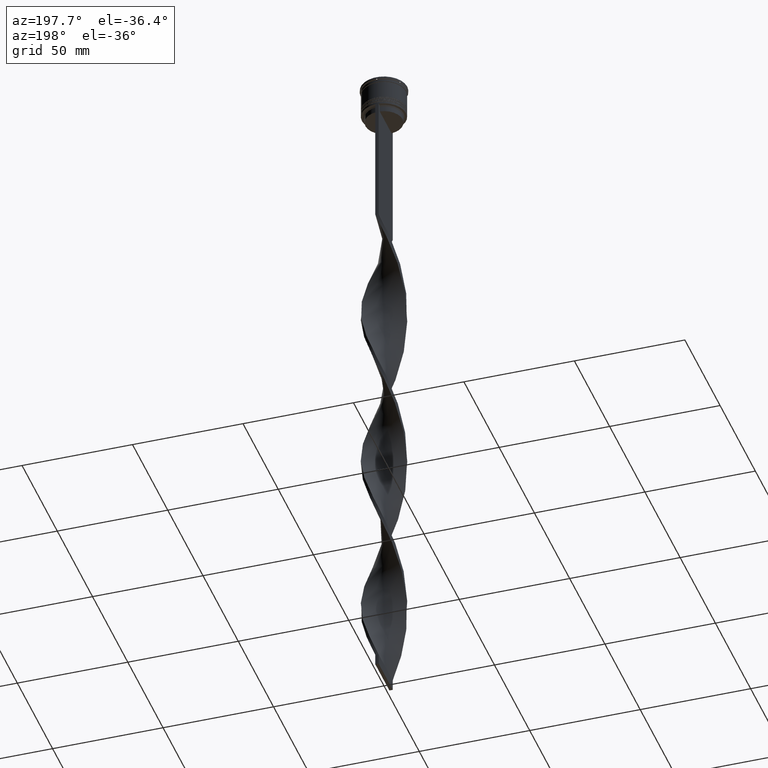
[diagram: clean part render]
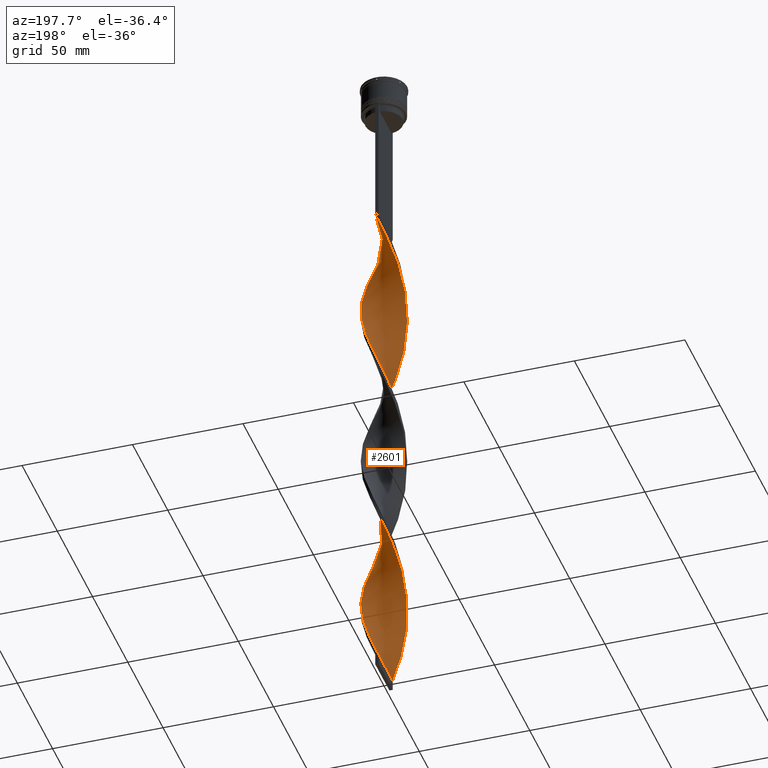
[diagram: same view with one face highlighted and labeled with its STEP entity id]
A machine part, auxiliary view. The second image highlights one B-rep face of the part: STEP entity #2601.
In plain terms, the highlighted face is a freeform B-spline surface patch.
Its self-contained STEP definition (entity closure, byte-faithful):
#2 = CARTESIAN_POINT ( 'NONE',  ( 1.610139721665724499, -9.929392229344635723, -157.5666666666666913 ) ) ;
#8 = CARTESIAN_POINT ( 'NONE',  ( 8.945852645255822466, 4.599684817117887015, -204.7666666666666799 ) ) ;
#10 = CARTESIAN_POINT ( 'NONE',  ( -0.7500000000000014433, -9.999999999999998224, -309.0000000000000000 ) ) ;
#18 = CARTESIAN_POINT ( 'NONE',  ( 5.271089777143518340, -8.531008882968830420, -167.4000000000000057 ) ) ;
#33 = CARTESIAN_POINT ( 'NONE',  ( -9.994209254731549308, -0.8235783949559544181, -273.5999999999999659 ) ) ;
#41 = CARTESIAN_POINT ( 'NONE',  ( 9.250558116688344157, -3.871650104254194869, -257.8666666666666742 ) ) ;
#45 = CARTESIAN_POINT ( 'NONE',  ( 5.882599862582947203, 8.159681294278259500, -216.5666666666666629 ) ) ;
#55 = CARTESIAN_POINT ( 'NONE',  ( -8.116165120681838374, -5.942494737169147889, -287.3666666666667311 ) ) ;
#63 = CARTESIAN_POINT ( 'NONE',  ( -2.376877556528113278, -9.742327908732750785, -222.4666666666666686 ) ) ;
#69 = CARTESIAN_POINT ( 'NONE',  ( 7.601397897755385991, 6.540737725975562356, -210.6666666666666572 ) ) ;
#77 = CARTESIAN_POINT ( 'NONE',  ( -8.979463439879779685, 4.533719918490541012, -259.8333333333334281 ) ) ;
#97 = CARTESIAN_POINT ( 'NONE',  ( 1.537017068246185003, -9.940973719881544213, -74.96666666666668277 ) ) ;
#113 = CARTESIAN_POINT ( 'NONE',  ( -4.599684817117892344, 8.945852645255822466, -244.0999999999999943 ) ) ;
#119 = CARTESIAN_POINT ( 'NONE',  ( 2.305110905848663627, 9.759557557171202546, -226.3999999999999773 ) ) ;
#145 = CARTESIAN_POINT ( 'NONE',  ( -5.271089777143526334, -8.531008882968833973, -214.5999999999999943 ) ) ;
#161 = CARTESIAN_POINT ( 'NONE',  ( -0.7499999999999988898, 10.00000000000000533, -151.6666666666666856 ) ) ;
#173 = CARTESIAN_POINT ( 'NONE',  ( -0.03701706824618418434, 10.05902628011846112, -232.3000000000000398 ) ) ;
#185 = CARTESIAN_POINT ( 'NONE',  ( -7.649331004530125711, -6.484615268705942626, -206.7333333333333201 ) ) ;
#198 = CARTESIAN_POINT ( 'NONE',  ( -10.00000000000000533, -0.7499999999999983347, -191.0000000000000000 ) ) ;
#205 = CARTESIAN_POINT ( 'NONE',  ( -5.208159890536744996, 8.569572367079022257, -163.4666666666666401 ) ) ;
#215 = CARTESIAN_POINT ( 'NONE',  ( -0.7499999999999988898, 10.00000000000000533, -151.6666666666666856 ) ) ;
#222 = CARTESIAN_POINT ( 'NONE',  ( -9.742327908732750785, 2.376877556528111946, -183.1333333333333258 ) ) ;
#225 = CARTESIAN_POINT ( 'NONE',  ( -3.871650104254190428, 9.250558116688338828, -84.80000000000001137 ) ) ;
#234 = CARTESIAN_POINT ( 'NONE',  ( -9.994209254731554637, 0.8235783949559579709, -187.0666666666666629 ) ) ;
#243 = CARTESIAN_POINT ( 'NONE',  ( 0.7500000000000002220, 9.999999999999998224, -73.00000000000001421 ) ) ;
#247 = CARTESIAN_POINT ( 'NONE',  ( 6.540737725975563244, -7.601397897755385991, -171.3333333333333428 ) ) ;
#253 = CARTESIAN_POINT ( 'NONE',  ( 3.871650104254194869, 9.250558116688344157, -139.8666666666666742 ) ) ;
#268 = CARTESIAN_POINT ( 'NONE',  ( 9.999999999999998224, -0.7500000000000019984, -191.0000000000000000 ) ) ;
#270 = CARTESIAN_POINT ( 'NONE',  ( -0.7499999999999988898, 10.00000000000000533, -309.0000000000000000 ) ) ;
#273 = CARTESIAN_POINT ( 'NONE',  ( -9.555263588120856966, 3.143615391390499614, -181.1666666666666856 ) ) ;
#277 = CARTESIAN_POINT ( 'NONE',  ( 10.05902628011846822, -0.03701706824618536396, -267.6999999999999318 ) ) ;
#283 = CARTESIAN_POINT ( 'NONE',  ( -9.994209254731549308, -0.8235783949559544181, -116.2666666666666657 ) ) ;
#286 = CARTESIAN_POINT ( 'NONE',  ( -0.7499999999999988898, 10.00000000000000533, -309.0000000000000000 ) ) ;
#299 = CARTESIAN_POINT ( 'NONE',  ( 9.929392229344639276, -1.610139721665728274, -263.7666666666667652 ) ) ;
#307 = CARTESIAN_POINT ( 'NONE',  ( -7.138980714781979486, 7.086630674828936272, -94.63333333333335418 ) ) ;
#314 = CARTESIAN_POINT ( 'NONE',  ( 3.073204743451140697, -9.578141394460876867, -236.2333333333333485 ) ) ;
#319 = CARTESIAN_POINT ( 'NONE',  ( -7.601397897755385102, -6.540737725975563244, -132.0000000000000000 ) ) ;
#323 = CARTESIAN_POINT ( 'NONE',  ( 1.610139721665729162, 9.929392229344639276, -303.0999999999999659 ) ) ;
#329 = CARTESIAN_POINT ( 'NONE',  ( 9.940973719881533555, -1.537017068246190554, -189.0333333333333314 ) ) ;
#340 = CARTESIAN_POINT ( 'NONE',  ( 9.940973719881544213, 1.537017068246184337, -271.6333333333332689 ) ) ;
#345 = CARTESIAN_POINT ( 'NONE',  ( 3.871650104254189539, -9.250558116688338828, -163.4666666666666401 ) ) ;
#355 = CARTESIAN_POINT ( 'NONE',  ( -8.531008882968828644, -5.271089777143518340, -285.3999999999999773 ) ) ;
#362 = CARTESIAN_POINT ( 'NONE',  ( -5.271089777143526334, -8.531008882968833973, -214.5999999999999943 ) ) ;
#366 = CARTESIAN_POINT ( 'NONE',  ( -9.759557557171204323, 2.305110905848662739, -108.3999999999999915 ) ) ;
#372 = CARTESIAN_POINT ( 'NONE',  ( 5.882599862582947203, 8.159681294278261277, -216.5666666666666629 ) ) ;
#380 = CARTESIAN_POINT ( 'NONE',  ( 4.599684817117896785, 8.945852645255826019, -295.2333333333333485 ) ) ;
#386 = CARTESIAN_POINT ( 'NONE',  ( 8.531008882968828644, 5.271089777143517452, -206.7333333333333201 ) ) ;
#396 = CARTESIAN_POINT ( 'NONE',  ( -8.159681294278259500, 5.882599862582949868, -255.9000000000000909 ) ) ;
#410 = CARTESIAN_POINT ( 'NONE',  ( -5.882599862582948980, -8.159681294278255947, -137.9000000000000625 ) ) ;
#417 = CARTESIAN_POINT ( 'NONE',  ( -7.086630674828937160, -7.138980714781979486, -291.3000000000000682 ) ) ;
#425 = ORIENTED_EDGE ( 'NONE', *, *, #2915, .F. ) ;
#430 = DIRECTION ( 'NONE',  ( 0.000000000000000000, 1.000000000000000000, 0.000000000000000000 ) ) ;
#434 = CARTESIAN_POINT ( 'NONE',  ( 7.601397897755390431, -6.540737725975569461, -92.66666666666667140 ) ) ;
#450 = CARTESIAN_POINT ( 'NONE',  ( -9.999999999999998224, 0.7500000000000008882, -269.6666666666666856 ) ) ;
#457 = CARTESIAN_POINT ( 'NONE',  ( -8.159681294278266606, -5.882599862582948091, -204.7666666666666799 ) ) ;
#468 = CARTESIAN_POINT ( 'NONE',  ( -0.7500000000000014433, -9.999999999999998224, -309.0000000000000000 ) ) ;
#475 = CARTESIAN_POINT ( 'NONE',  ( 5.271089777143525446, 8.531008882968833973, -135.9333333333333371 ) ) ;
#476 = CARTESIAN_POINT ( 'NONE',  ( -3.143615391390492064, 9.555263588120853413, -82.83333333333335702 ) ) ;
#480 = FACE_OUTER_BOUND ( 'NONE', #2678, .T. ) ;
#487 = CARTESIAN_POINT ( 'NONE',  ( -5.208159890536744996, -8.569572367079015152, -297.2000000000000455 ) ) ;
#492 = CARTESIAN_POINT ( 'NONE',  ( -9.555263588120856966, 3.143615391390499170, -181.1666666666667140 ) ) ;
#499 = CARTESIAN_POINT ( 'NONE',  ( -2.376877556528108393, 9.742327908732745456, -80.86666666666667425 ) ) ;
#506 = CARTESIAN_POINT ( 'NONE',  ( -8.116165120681838374, -5.942494737169147889, -287.3666666666667311 ) ) ;
#514 = CARTESIAN_POINT ( 'NONE',  ( 7.649331004530123934, 6.484615268705943514, -128.0666666666666629 ) ) ;
#523 = CARTESIAN_POINT ( 'NONE',  ( -3.143615391390491620, 9.555263588120853413, -82.83333333333335702 ) ) ;
#532 = CARTESIAN_POINT ( 'NONE',  ( 4.533719918490542788, -8.979463439879785014, -82.83333333333335702 ) ) ;
#541 = CARTESIAN_POINT ( 'NONE',  ( -5.882599862582950756, 8.159681294278264829, -165.4333333333333655 ) ) ;
#554 = CARTESIAN_POINT ( 'NONE',  ( -9.742327908732750785, 2.376877556528111946, -183.1333333333333258 ) ) ;
#567 = CARTESIAN_POINT ( 'NONE',  ( -0.7500000000000013323, -9.999999999999998224, -151.6666666666666856 ) ) ;
#574 = CARTESIAN_POINT ( 'NONE',  ( 7.649331004530123934, 6.484615268705943514, -128.0666666666666629 ) ) ;
#589 = CARTESIAN_POINT ( 'NONE',  ( -3.803462330970839744, -9.278802417170323835, -143.7999999999999829 ) ) ;
#598 = CARTESIAN_POINT ( 'NONE',  ( 4.599684817117896785, 8.945852645255826019, -137.9000000000000625 ) ) ;
#612 = CARTESIAN_POINT ( 'NONE',  ( 8.116165120681836598, 5.942494737169151442, -208.7000000000000171 ) ) ;
#619 = CARTESIAN_POINT ( 'NONE',  ( -8.159681294278266606, -5.882599862582947203, -204.7666666666666799 ) ) ;
#633 = CARTESIAN_POINT ( 'NONE',  ( 7.138980714781975934, -7.086630674828940712, -173.3000000000000114 ) ) ;
#638 = CARTESIAN_POINT ( 'NONE',  ( -4.599684817117894120, -8.945852645255826019, -216.5666666666666629 ) ) ;
#643 = CARTESIAN_POINT ( 'NONE',  ( -3.073204743451140697, -9.578141394460869762, -145.7666666666666515 ) ) ;
#647 = CARTESIAN_POINT ( 'NONE',  ( 5.208159890536745884, -8.569572367079022257, -242.1333333333333258 ) ) ;
#655 = CARTESIAN_POINT ( 'NONE',  ( 9.578141394460871538, -3.073204743451137144, -185.0999999999999659 ) ) ;
#662 = CARTESIAN_POINT ( 'NONE',  ( 6.484615268705944402, -7.649331004530123934, -246.0666666666666629 ) ) ;
#666 = CARTESIAN_POINT ( 'NONE',  ( -8.116165120681838374, -5.942494737169147889, -130.0333333333333314 ) ) ;
#676 = CARTESIAN_POINT ( 'NONE',  ( -9.555263588120853413, -3.143615391390491620, -279.4999999999999432 ) ) ;
#684 = CARTESIAN_POINT ( 'NONE',  ( -5.942494737169157659, -8.116165120681838374, -212.6333333333333826 ) ) ;
#688 = CARTESIAN_POINT ( 'NONE',  ( -9.578141394460869762, 3.073204743451140697, -106.4333333333333513 ) ) ;
#691 = EDGE_CURVE ( 'NONE', #3263, #3656, #3763, .T. ) ;
#698 = CARTESIAN_POINT ( 'NONE',  ( -9.940973719881535331, 1.537017068246185003, -267.6999999999999318 ) ) ;
#705 = CARTESIAN_POINT ( 'NONE',  ( -7.649331004530125711, -6.484615268705942626, -206.7333333333333201 ) ) ;
#710 = CARTESIAN_POINT ( 'NONE',  ( -9.742327908732745456, -2.376877556528107505, -120.2000000000000028 ) ) ;
#720 = CARTESIAN_POINT ( 'NONE',  ( -9.250558116688338828, -3.871650104254190428, -281.4666666666666401 ) ) ;
#734 = CARTESIAN_POINT ( 'NONE',  ( -9.929392229344635723, -1.610139721665724943, -118.2333333333333485 ) ) ;
#742 = B_SPLINE_CURVE_WITH_KNOTS ( 'NONE', 3,
 ( #10, #1884, #2907, #286 ),
 .UNSPECIFIED., .F., .F.,
 ( 4, 4 ),
 ( 0.000000000000000000, 1.000000000000000000 ),
 .UNSPECIFIED. ) ;
#744 = CARTESIAN_POINT ( 'NONE',  ( 3.803462330970841521, 9.278802417170323835, -222.4666666666666686 ) ) ;
#756 = EDGE_CURVE ( 'NONE', #1098, #3393, #803, .T. ) ;
#759 = CARTESIAN_POINT ( 'NONE',  ( -6.484615268705941737, -7.649331004530116829, -293.2666666666666515 ) ) ;
#766 = CARTESIAN_POINT ( 'NONE',  ( 6.484615268705944402, -7.649331004530123934, -88.73333333333334849 ) ) ;
#782 = CARTESIAN_POINT ( 'NONE',  ( -6.540737725975570349, -7.601397897755387767, -210.6666666666666572 ) ) ;
#800 = CARTESIAN_POINT ( 'NONE',  ( -8.979463439879777908, 4.533719918490541012, -259.8333333333334281 ) ) ;
#803 =( BOUNDED_CURVE ( )  B_SPLINE_CURVE ( 2, ( #2083, #1537, #4224, #3849, #3218, #532, #3568, #2190, #1234, #3500, #2250, #2229, #2866, #2166, #3891, #2910, #3589, #1867, #2509, #4200, #1802, #3150, #3173, #1848, #4174, #864, #901, #920, #574, #1195, #1828, #1575, #2841, #598, #253, #1216, #2550, #881, #2570, #3546, #215, #2532, #1889, #1512, #3874, #1491, #2822, #1558, #3525, #2890, #4244, #2209, #3196, #3238, #4156, #273, #554, #1256, #234, #1173, #198, #3912, #943, #2486, #3828, #2932, #2998, #619, #705, #1043, #3324, #684, #362, #638, #1984, #2665, #63, #1933, #3979, #1340, #2981, #3278, #1298, #314, #3301, #2955, #2612, #1658, #662, #4267, #982, #1616, #3344, #4292, #41, #2356, #4002, #1361, #1025, #2337, #3954, #340, #1278, #2291, #3658, #3679, #2689, #3256, #2008, #3633, #2592, #1318, #3934, #380, #1005, #1959, #962, #4023, #2270, #3609, #1680 ),
 .UNSPECIFIED., .F., .T. ) 
 B_SPLINE_CURVE_WITH_KNOTS ( ( 3, 2, 2, 2, 2, 2, 2, 2, 2, 2, 2, 2, 2, 2, 2, 2, 2, 2, 2, 2, 2, 2, 2, 2, 2, 2, 2, 2, 2, 2, 2, 2, 2, 2, 2, 2, 2, 2, 2, 2, 2, 2, 2, 2, 2, 2, 2, 2, 2, 2, 2, 2, 2, 2, 2, 2, 2, 2, 2, 2, 3 ),
 ( 0.000000000000000000, 0.01250000000000000243, 0.02500000000000000486, 0.03749999999999999861, 0.05000000000000000971, 0.06250000000000000000, 0.07499999999999999722, 0.08749999999999998057, 0.1000000000000000194, 0.1125000000000000028, 0.1250000000000000000, 0.1375000000000000111, 0.1499999999999999944, 0.1625000000000000056, 0.1749999999999999611, 0.1875000000000000000, 0.2000000000000000389, 0.2124999999999999944, 0.2250000000000000056, 0.2374999999999999611, 0.2500000000000000000, 0.2625000000000000111, 0.2750000000000000222, 0.2874999999999999778, 0.2999999999999999889, 0.3125000000000000000, 0.3250000000000000111, 0.3375000000000000777, 0.3499999999999999223, 0.3624999999999999889, 0.3750000000000000000, 0.3875000000000000111, 0.4000000000000000777, 0.4124999999999999223, 0.4249999999999999889, 0.4375000000000000000, 0.4500000000000000111, 0.4625000000000000777, 0.4749999999999999223, 0.4874999999999999889, 0.5000000000000000000, 0.5124999999999999556, 0.5250000000000000222, 0.5374999999999999778, 0.5500000000000000444, 0.5625000000000000000, 0.5749999999999999556, 0.5875000000000000222, 0.5999999999999999778, 0.6125000000000000444, 0.6250000000000000000, 0.6374999999999999556, 0.6500000000000000222, 0.6624999999999999778, 0.6750000000000001554, 0.6875000000000000000, 0.6999999999999998446, 0.7125000000000000222, 0.7249999999999999778, 0.7375000000000001554, 0.7500000000000000000 ),
 .UNSPECIFIED. ) 
 CURVE ( )  GEOMETRIC_REPRESENTATION_ITEM ( )  RATIONAL_B_SPLINE_CURVE ( ( 1.000000000000000000, 0.9969173337331279638, 1.000000000000000000, 0.9969173337331279638, 1.000000000000000000, 0.9969173337331279638, 1.000000000000000000, 0.9969173337331279638, 1.000000000000000000, 0.9969173337331279638, 1.000000000000000000, 0.9969173337331279638, 1.000000000000000000, 0.9969173337331279638, 1.000000000000000000, 0.9969173337331279638, 1.000000000000000000, 0.9969173337331279638, 1.000000000000000000, 0.9969173337331279638, 1.000000000000000000, 0.9969173337331279638, 1.000000000000000000, 0.9969173337331279638, 1.000000000000000000, 0.9969173337331279638, 1.000000000000000000, 0.9969173337331279638, 1.000000000000000000, 0.9969173337331279638, 1.000000000000000000, 0.9969173337331279638, 1.000000000000000000, 0.9969173337331279638, 1.000000000000000000, 0.9969173337331279638, 1.000000000000000000, 0.9969173337331279638, 1.000000000000000000, 0.9969173337331279638, 1.000000000000000000, 0.9969173337331279638, 1.000000000000000000, 0.9969173337331279638, 1.000000000000000000, 0.9969173337331279638, 1.000000000000000000, 0.9969173337331279638, 1.000000000000000000, 0.9969173337331279638, 1.000000000000000000, 0.9969173337331279638, 1.000000000000000000, 0.9969173337331279638, 1.000000000000000000, 0.9969173337331279638, 1.000000000000000000, 0.9969173337331279638, 1.000000000000000000, 0.9969173337331279638, 1.000000000000000000, 0.9969173337331279638, 1.000000000000000000, 0.9969173337331279638, 1.000000000000000000, 0.9969173337331279638, 1.000000000000000000, 0.9969173337331279638, 1.000000000000000000, 0.9969173337331279638, 1.000000000000000000, 0.9969173337331279638, 1.000000000000000000, 0.9969173337331279638, 1.000000000000000000, 0.9969173337331279638, 1.000000000000000000, 0.9969173337331279638, 1.000000000000000000, 0.9969173337331279638, 1.000000000000000000, 0.9969173337331279638, 1.000000000000000000, 0.9969173337331279638, 1.000000000000000000, 0.9969173337331279638, 1.000000000000000000, 0.9969173337331279638, 1.000000000000000000, 0.9969173337331279638, 1.000000000000000000, 0.9969173337331279638, 1.000000000000000000, 0.9969173337331279638, 1.000000000000000000, 0.9969173337331279638, 1.000000000000000000, 0.9969173337331279638, 1.000000000000000000, 0.9969173337331279638, 1.000000000000000000, 0.9969173337331279638, 1.000000000000000000, 0.9969173337331279638, 1.000000000000000000, 0.9969173337331279638, 1.000000000000000000, 0.9969173337331279638, 1.000000000000000000, 0.9969173337331279638, 1.000000000000000000, 0.9969173337331279638, 1.000000000000000000, 0.9969173337331279638, 1.000000000000000000, 0.9969173337331279638, 1.000000000000000000, 0.9969173337331279638, 1.000000000000000000, 0.9969173337331279638, 1.000000000000000000 ) ) 
 REPRESENTATION_ITEM ( '' )  );
#807 = CARTESIAN_POINT ( 'NONE',  ( 4.599684817117896785, 8.945852645255826019, -137.9000000000000625 ) ) ;
#821 = CARTESIAN_POINT ( 'NONE',  ( -7.601397897755385102, -6.540737725975563244, -289.3333333333333144 ) ) ;
#828 = CARTESIAN_POINT ( 'NONE',  ( -9.250558116688344157, 3.871650104254195757, -179.1999999999999886 ) ) ;
#840 = CARTESIAN_POINT ( 'NONE',  ( -3.803462330970839744, -9.278802417170323835, -301.1333333333333258 ) ) ;
#848 = CARTESIAN_POINT ( 'NONE',  ( 1.610139721665729162, 9.929392229344639276, -145.7666666666666515 ) ) ;
#864 = CARTESIAN_POINT ( 'NONE',  ( 8.979463439879785014, 4.533719918490541900, -122.1666666666666856 ) ) ;
#870 = CARTESIAN_POINT ( 'NONE',  ( -9.759557557171209652, -2.305110905848660963, -194.9333333333333371 ) ) ;
#881 = CARTESIAN_POINT ( 'NONE',  ( 1.610139721665729162, 9.929392229344641052, -145.7666666666666515 ) ) ;
#901 = CARTESIAN_POINT ( 'NONE',  ( 8.569572367079022257, 5.208159890536745884, -124.1333333333333400 ) ) ;
#906 = CARTESIAN_POINT ( 'NONE',  ( 4.599684817117896785, 8.945852645255826019, -295.2333333333332916 ) ) ;
#912 = CARTESIAN_POINT ( 'NONE',  ( -5.271089777143520116, 8.531008882968830420, -88.73333333333334849 ) ) ;
#920 = CARTESIAN_POINT ( 'NONE',  ( 8.159681294278264829, 5.882599862582951644, -126.1000000000000227 ) ) ;
#928 = CARTESIAN_POINT ( 'NONE',  ( 7.601397897755390431, -6.540737725975569461, -250.0000000000000000 ) ) ;
#935 = CARTESIAN_POINT ( 'NONE',  ( -5.208159890536744996, -8.569572367079015152, -139.8666666666666742 ) ) ;
#943 = CARTESIAN_POINT ( 'NONE',  ( -9.759557557171209652, -2.305110905848660963, -194.9333333333333371 ) ) ;
#952 = CARTESIAN_POINT ( 'NONE',  ( 8.569572367079022257, 5.208159890536745884, -281.4666666666666401 ) ) ;
#957 = CARTESIAN_POINT ( 'NONE',  ( 5.271089777143518340, -8.531008882968828644, -167.4000000000000057 ) ) ;
#962 = CARTESIAN_POINT ( 'NONE',  ( 2.376877556528111501, 9.742327908732750785, -301.1333333333333258 ) ) ;
#966 = CARTESIAN_POINT ( 'NONE',  ( 7.086630674828939824, 7.138980714781974157, -212.6333333333333826 ) ) ;
#970 = CARTESIAN_POINT ( 'NONE',  ( 1.537017068246185003, -9.940973719881544213, -232.3000000000000114 ) ) ;
#975 = CARTESIAN_POINT ( 'NONE',  ( -1.537017068246185891, -9.940973719881535331, -149.7000000000000455 ) ) ;
#982 = CARTESIAN_POINT ( 'NONE',  ( 7.601397897755390431, -6.540737725975569461, -250.0000000000000000 ) ) ;
#987 = CARTESIAN_POINT ( 'NONE',  ( 9.999999999999998224, -0.7500000000000021094, -191.0000000000000000 ) ) ;
#999 = CARTESIAN_POINT ( 'NONE',  ( -0.03701706824618429537, 10.05902628011846112, -232.3000000000000114 ) ) ;
#1005 = CARTESIAN_POINT ( 'NONE',  ( 3.871650104254194869, 9.250558116688344157, -297.2000000000000455 ) ) ;
#1009 = CARTESIAN_POINT ( 'NONE',  ( -9.994209254731549308, -0.8235783949559543071, -116.2666666666666657 ) ) ;
#1019 = CARTESIAN_POINT ( 'NONE',  ( 3.803462330970840632, -9.278802417170329164, -80.86666666666667425 ) ) ;
#1025 = CARTESIAN_POINT ( 'NONE',  ( 9.994209254731556413, -0.8235783949559567496, -265.7333333333333485 ) ) ;
#1030 = CARTESIAN_POINT ( 'NONE',  ( 9.759557557171202546, -2.305110905848663627, -187.0666666666666629 ) ) ;
#1037 = CARTESIAN_POINT ( 'NONE',  ( 0.7500000000000001110, 9.999999999999998224, -230.3333333333333428 ) ) ;
#1043 = CARTESIAN_POINT ( 'NONE',  ( -7.138980714781983927, -7.086630674828942489, -208.7000000000000171 ) ) ;
#1049 = CARTESIAN_POINT ( 'NONE',  ( 9.940973719881533555, -1.537017068246190998, -189.0333333333333314 ) ) ;
#1056 = CARTESIAN_POINT ( 'NONE',  ( -7.601397897755385102, -6.540737725975563244, -289.3333333333333144 ) ) ;
#1081 = CARTESIAN_POINT ( 'NONE',  ( -4.599684817117892344, 8.945852645255820690, -244.0999999999999659 ) ) ;
#1092 = CARTESIAN_POINT ( 'NONE',  ( 0.7500000000000002220, 9.999999999999998224, -73.00000000000001421 ) ) ;
#1093 = CARTESIAN_POINT ( 'NONE',  ( -3.871650104254190428, 9.250558116688338828, -242.1333333333333258 ) ) ;
#1098 = VERTEX_POINT ( 'NONE', #1913 ) ;
#1103 = CARTESIAN_POINT ( 'NONE',  ( -9.929392229344641052, 1.610139721665725387, -185.0999999999999659 ) ) ;
#1115 = CARTESIAN_POINT ( 'NONE',  ( -6.540737725975564132, 7.601397897755385102, -250.0000000000000000 ) ) ;
#1122 = CARTESIAN_POINT ( 'NONE',  ( 9.994209254731556413, -0.8235783949559567496, -108.3999999999999915 ) ) ;
#1135 = CARTESIAN_POINT ( 'NONE',  ( -10.05902628011846112, -0.03701706824618352515, -271.6333333333332689 ) ) ;
#1141 = CARTESIAN_POINT ( 'NONE',  ( -8.979463439879785014, -4.533719918490545453, -200.8333333333333428 ) ) ;
#1143 = CARTESIAN_POINT ( 'NONE',  ( -7.649331004530118605, 6.484615268705940849, -96.60000000000000853 ) ) ;
#1149 = CARTESIAN_POINT ( 'NONE',  ( -0.03701706824618429537, 10.05902628011846112, -74.96666666666668277 ) ) ;
#1163 = CARTESIAN_POINT ( 'NONE',  ( 9.578141394460878644, 3.073204743451140697, -118.2333333333333343 ) ) ;
#1173 = CARTESIAN_POINT ( 'NONE',  ( -10.05902628011847000, 0.03701706824619112324, -189.0333333333333314 ) ) ;
#1179 = CARTESIAN_POINT ( 'NONE',  ( -9.994209254731554637, 0.8235783949559579709, -187.0666666666666629 ) ) ;
#1195 = CARTESIAN_POINT ( 'NONE',  ( 7.138980714781985704, 7.086630674828938936, -130.0333333333333314 ) ) ;
#1202 = CARTESIAN_POINT ( 'NONE',  ( -0.03701706824619165753, -10.05902628011847000, -228.3666666666666458 ) ) ;
#1205 = CARTESIAN_POINT ( 'NONE',  ( -5.942494737169148777, 8.116165120681838374, -90.70000000000001705 ) ) ;
#1216 = CARTESIAN_POINT ( 'NONE',  ( 3.143615391390495173, 9.555263588120860518, -141.8333333333333428 ) ) ;
#1222 = CARTESIAN_POINT ( 'NONE',  ( 2.376877556528111501, 9.742327908732750785, -301.1333333333333258 ) ) ;
#1224 = CARTESIAN_POINT ( 'NONE',  ( 8.116165120681836598, 5.942494737169151442, -208.7000000000000171 ) ) ;
#1229 = CARTESIAN_POINT ( 'NONE',  ( 9.929392229344635723, 1.610139721665719836, -196.9000000000000057 ) ) ;
#1234 = CARTESIAN_POINT ( 'NONE',  ( 6.484615268705944402, -7.649331004530123934, -88.73333333333334849 ) ) ;
#1243 = CARTESIAN_POINT ( 'NONE',  ( 8.531008882968833973, -5.271089777143523669, -253.9333333333333371 ) ) ;
#1250 = CARTESIAN_POINT ( 'NONE',  ( 9.742327908732745456, 2.376877556528106172, -198.8666666666666742 ) ) ;
#1256 = CARTESIAN_POINT ( 'NONE',  ( -9.929392229344642828, 1.610139721665725165, -185.0999999999999943 ) ) ;
#1265 = CARTESIAN_POINT ( 'NONE',  ( 0.03701706824618614111, 10.05902628011846822, -307.0333333333333030 ) ) ;
#1270 = CARTESIAN_POINT ( 'NONE',  ( -2.305110905848663183, -9.759557557171202546, -147.7333333333333201 ) ) ;
#1278 = CARTESIAN_POINT ( 'NONE',  ( 9.759557557171209652, 2.305110905848662739, -273.5999999999999659 ) ) ;
#1291 = CARTESIAN_POINT ( 'NONE',  ( -3.073204743451141141, -9.578141394460869762, -145.7666666666666515 ) ) ;
#1298 = CARTESIAN_POINT ( 'NONE',  ( 2.305110905848663183, -9.759557557171209652, -234.2666666666666515 ) ) ;
#1302 = CARTESIAN_POINT ( 'NONE',  ( -2.305110905848663183, -9.759557557171202546, -147.7333333333333201 ) ) ;
#1311 = CARTESIAN_POINT ( 'NONE',  ( 8.531008882968828644, 5.271089777143517452, -206.7333333333333201 ) ) ;
#1318 = CARTESIAN_POINT ( 'NONE',  ( 5.942494737169154106, 8.116165120681841927, -291.3000000000000682 ) ) ;
#1323 = CARTESIAN_POINT ( 'NONE',  ( 9.742327908732745456, 2.376877556528106172, -198.8666666666666742 ) ) ;
#1327 = VECTOR ( 'NONE', #430, 1000.000000000000000 ) ;
#1334 = CARTESIAN_POINT ( 'NONE',  ( -3.143615391390491620, 9.555263588120853413, -240.1666666666667140 ) ) ;
#1340 = CARTESIAN_POINT ( 'NONE',  ( -0.03701706824619165753, -10.05902628011847000, -228.3666666666666742 ) ) ;
#1344 = CARTESIAN_POINT ( 'NONE',  ( -8.531008882968830420, -5.271089777143518340, -128.0666666666666629 ) ) ;
#1354 = CARTESIAN_POINT ( 'NONE',  ( 4.533719918490545453, 8.979463439879777908, -220.5000000000000284 ) ) ;
#1361 = CARTESIAN_POINT ( 'NONE',  ( 9.929392229344641052, -1.610139721665728274, -263.7666666666667084 ) ) ;
#1365 = CARTESIAN_POINT ( 'NONE',  ( -1.537017068246185891, -9.940973719881535331, -149.7000000000000171 ) ) ;
#1373 = CARTESIAN_POINT ( 'NONE',  ( -3.073204743451141141, -9.578141394460869762, -303.0999999999999659 ) ) ;
#1395 = CARTESIAN_POINT ( 'NONE',  ( 5.208159890536745884, -8.569572367079022257, -84.80000000000001137 ) ) ;
#1417 = CARTESIAN_POINT ( 'NONE',  ( 8.531008882968833973, -5.271089777143523669, -96.60000000000000853 ) ) ;
#1430 = CARTESIAN_POINT ( 'NONE',  ( -5.942494737169148777, 8.116165120681838374, -248.0333333333333599 ) ) ;
#1437 = CARTESIAN_POINT ( 'NONE',  ( -3.143615391390500058, -9.555263588120856966, -220.5000000000000284 ) ) ;
#1448 = CARTESIAN_POINT ( 'NONE',  ( -9.555263588120853413, -3.143615391390491176, -279.4999999999999432 ) ) ;
#1454 = CARTESIAN_POINT ( 'NONE',  ( -7.601397897755389543, 6.540737725975570349, -171.3333333333333428 ) ) ;
#1469 = CARTESIAN_POINT ( 'NONE',  ( -9.578141394460869762, 3.073204743451140697, -263.7666666666667084 ) ) ;
#1476 = CARTESIAN_POINT ( 'NONE',  ( -2.376877556528113278, -9.742327908732750785, -222.4666666666666686 ) ) ;
#1491 = CARTESIAN_POINT ( 'NONE',  ( -4.533719918490541900, 8.979463439879785014, -161.5000000000000000 ) ) ;
#1498 = CARTESIAN_POINT ( 'NONE',  ( -6.484615268705943514, 7.649331004530123934, -167.4000000000000057 ) ) ;
#1512 = CARTESIAN_POINT ( 'NONE',  ( -3.073204743451139809, 9.578141394460878644, -157.5666666666666913 ) ) ;
#1521 = CARTESIAN_POINT ( 'NONE',  ( -4.533719918490541900, 8.979463439879786790, -161.5000000000000000 ) ) ;
#1537 = CARTESIAN_POINT ( 'NONE',  ( 1.537017068246185003, -9.940973719881544213, -74.96666666666668277 ) ) ;
#1544 = CARTESIAN_POINT ( 'NONE',  ( 0.7500000000000001110, -10.00000000000000533, -230.3333333333333428 ) ) ;
#1550 = CARTESIAN_POINT ( 'NONE',  ( 9.759557557171202546, -2.305110905848663627, -187.0666666666666629 ) ) ;
#1558 = CARTESIAN_POINT ( 'NONE',  ( -5.882599862582949868, 8.159681294278264829, -165.4333333333333371 ) ) ;
#1565 = CARTESIAN_POINT ( 'NONE',  ( 6.540737725975569461, 7.601397897755389543, -289.3333333333333144 ) ) ;
#1570 = CARTESIAN_POINT ( 'NONE',  ( -6.484615268705941737, -7.649331004530116829, -135.9333333333333371 ) ) ;
#1575 = CARTESIAN_POINT ( 'NONE',  ( 5.942494737169154106, 8.116165120681841927, -133.9666666666666686 ) ) ;
#1580 = CARTESIAN_POINT ( 'NONE',  ( 9.759557557171209652, 2.305110905848662739, -273.5999999999999659 ) ) ;
#1586 = CARTESIAN_POINT ( 'NONE',  ( -5.882599862582949868, -8.159681294278259500, -137.9000000000000625 ) ) ;
#1603 = CARTESIAN_POINT ( 'NONE',  ( 8.945852645255826019, -4.599684817117896785, -255.9000000000000909 ) ) ;
#1608 = CARTESIAN_POINT ( 'NONE',  ( 0.03701706824618297698, -10.05902628011846112, -153.6333333333333826 ) ) ;
#1616 = CARTESIAN_POINT ( 'NONE',  ( 8.116165120681841927, -5.942494737169153218, -251.9666666666666686 ) ) ;
#1622 = CARTESIAN_POINT ( 'NONE',  ( -0.7500000000000014433, -9.999999999999998224, -151.6666666666666856 ) ) ;
#1633 = CARTESIAN_POINT ( 'NONE',  ( 10.05902628011846112, 0.03701706824618689745, -192.9666666666666970 ) ) ;
#1646 = CARTESIAN_POINT ( 'NONE',  ( 6.540737725975562356, -7.601397897755385991, -171.3333333333333428 ) ) ;
#1652 = CARTESIAN_POINT ( 'NONE',  ( -0.8235783949559550843, 9.994209254731549308, -234.2666666666666515 ) ) ;
#1658 = CARTESIAN_POINT ( 'NONE',  ( 5.882599862582951644, -8.159681294278264829, -244.0999999999999943 ) ) ;
#1665 = CARTESIAN_POINT ( 'NONE',  ( 1.537017068246191664, 9.940973719881533555, -228.3666666666666742 ) ) ;
#1675 = CARTESIAN_POINT ( 'NONE',  ( -7.138980714781979486, 7.086630674828936272, -251.9666666666666970 ) ) ;
#1680 = CARTESIAN_POINT ( 'NONE',  ( -0.7499999999999988898, 10.00000000000000533, -309.0000000000000000 ) ) ;
#1686 = CARTESIAN_POINT ( 'NONE',  ( 6.484615268705942626, 7.649331004530116829, -214.5999999999999943 ) ) ;
#1697 = CARTESIAN_POINT ( 'NONE',  ( -4.533719918490541012, -8.979463439879779685, -299.1666666666666856 ) ) ;
#1700 = CARTESIAN_POINT ( 'NONE',  ( -0.7500000000000014433, -9.999999999999998224, -309.0000000000000000 ) ) ;
#1709 = CARTESIAN_POINT ( 'NONE',  ( 8.979463439879776132, -4.533719918490545453, -181.1666666666666856 ) ) ;
#1714 = CARTESIAN_POINT ( 'NONE',  ( -9.278802417170323835, 3.803462330970839300, -261.7999999999999545 ) ) ;
#1725 = CARTESIAN_POINT ( 'NONE',  ( -1.610139721665725832, 9.929392229344633947, -236.2333333333333485 ) ) ;
#1733 = CARTESIAN_POINT ( 'NONE',  ( -6.484615268705941737, -7.649331004530116829, -293.2666666666666515 ) ) ;
#1746 = CARTESIAN_POINT ( 'NONE',  ( -4.533719918490541012, -8.979463439879777908, -299.1666666666666856 ) ) ;
#1755 = CARTESIAN_POINT ( 'NONE',  ( -10.00000000000000533, -0.7499999999999983347, -191.0000000000000000 ) ) ;
#1772 = CARTESIAN_POINT ( 'NONE',  ( 2.376877556528111501, 9.742327908732750785, -143.7999999999999829 ) ) ;
#1773 = CARTESIAN_POINT ( 'NONE',  ( -4.599684817117892344, 8.945852645255822466, -86.76666666666666572 ) ) ;
#1786 = CARTESIAN_POINT ( 'NONE',  ( -4.599684817117894120, -8.945852645255826019, -216.5666666666666629 ) ) ;
#1802 = CARTESIAN_POINT ( 'NONE',  ( 10.00000000000000533, 0.7499999999999994449, -112.3333333333333428 ) ) ;
#1812 = CARTESIAN_POINT ( 'NONE',  ( 10.00000000000000533, 0.7499999999999994449, -112.3333333333333428 ) ) ;
#1828 = CARTESIAN_POINT ( 'NONE',  ( 6.540737725975569461, 7.601397897755389543, -132.0000000000000000 ) ) ;
#1834 = CARTESIAN_POINT ( 'NONE',  ( -8.116165120681840150, 5.942494737169157659, -173.3000000000000114 ) ) ;
#1848 = CARTESIAN_POINT ( 'NONE',  ( 9.578141394460878644, 3.073204743451140253, -118.2333333333333485 ) ) ;
#1852 = CARTESIAN_POINT ( 'NONE',  ( 9.940973719881544213, 1.537017068246184337, -271.6333333333332689 ) ) ;
#1854 = CARTESIAN_POINT ( 'NONE',  ( -0.03701706824618418434, 10.05902628011846112, -74.96666666666668277 ) ) ;
#1860 = CARTESIAN_POINT ( 'NONE',  ( 5.942494737169147889, -8.116165120681840150, -169.3666666666667027 ) ) ;
#1867 = CARTESIAN_POINT ( 'NONE',  ( 9.929392229344641052, -1.610139721665728274, -106.4333333333333513 ) ) ;
#1874 = CARTESIAN_POINT ( 'NONE',  ( 7.138980714781985704, 7.086630674828939824, -287.3666666666667311 ) ) ;
#1881 = CARTESIAN_POINT ( 'NONE',  ( 4.599684817117890567, -8.945852645255820690, -165.4333333333333655 ) ) ;
#1884 = CARTESIAN_POINT ( 'NONE',  ( -0.7500000000000005551, -3.333333333333330373, -309.0000000000000000 ) ) ;
#1889 = CARTESIAN_POINT ( 'NONE',  ( -2.305110905848661851, 9.759557557171209652, -155.6000000000000227 ) ) ;
#1898 = CARTESIAN_POINT ( 'NONE',  ( 4.533719918490542788, -8.979463439879786790, -240.1666666666667140 ) ) ;
#1904 = CARTESIAN_POINT ( 'NONE',  ( 7.601397897755385991, 6.540737725975562356, -210.6666666666666572 ) ) ;
#1913 = CARTESIAN_POINT ( 'NONE',  ( 0.7500000000000001110, -10.00000000000000533, -73.00000000000001421 ) ) ;
#1919 = CARTESIAN_POINT ( 'NONE',  ( 9.578141394460878644, 3.073204743451140697, -275.5666666666666060 ) ) ;
#1926 = CARTESIAN_POINT ( 'NONE',  ( 8.159681294278261277, -5.882599862582945427, -177.2333333333333485 ) ) ;
#1933 = CARTESIAN_POINT ( 'NONE',  ( -1.610139721665725610, -9.929392229344642828, -224.4333333333333371 ) ) ;
#1939 = CARTESIAN_POINT ( 'NONE',  ( -9.555263588120853413, -3.143615391390491176, -122.1666666666666856 ) ) ;
#1944 = CARTESIAN_POINT ( 'NONE',  ( 8.116165120681840150, -5.942494737169153218, -251.9666666666666970 ) ) ;
#1951 = CARTESIAN_POINT ( 'NONE',  ( 8.569572367079015152, -5.208159890536744996, -179.1999999999999886 ) ) ;
#1959 = CARTESIAN_POINT ( 'NONE',  ( 3.143615391390495173, 9.555263588120860518, -299.1666666666666856 ) ) ;
#1966 = CARTESIAN_POINT ( 'NONE',  ( -6.484615268705941737, -7.649331004530116829, -135.9333333333333371 ) ) ;
#1978 = CARTESIAN_POINT ( 'NONE',  ( -5.271089777143520116, 8.531008882968830420, -246.0666666666666629 ) ) ;
#1984 = CARTESIAN_POINT ( 'NONE',  ( -3.871650104254195757, -9.250558116688344157, -218.5333333333333314 ) ) ;
#1991 = CARTESIAN_POINT ( 'NONE',  ( 10.05902628011846112, 0.03701706824618678643, -192.9666666666666970 ) ) ;
#1995 =( BOUNDED_SURFACE ( )  B_SPLINE_SURFACE ( 1, 2, ( 
 ( #4127, #1149, #2463, #3469, #499, #523, #3145, #3604, #912, #3949, #2562, #307, #3884, #2631, #2606, #3250, #2544, #4282, #3293, #3970, #2263, #2904, #283, #2203, #2881, #2284, #2220, #3211, #3536, #3560, #3928, #2925, #1570, #1586, #935, #4259, #589, #1291, #1270, #975, #567, #1608, #4218, #3582, #2945, #2583, #3624, #1881, #957, #1860, #247, #633, #3230, #1926, #1951, #3270, #2240, #655, #1550, #329, #268, #1633, #4238, #1229, #1250, #3905, #2974, #8, #1311, #612, #1904, #3361, #2720, #372, #4017, #1354, #744, #3015, #119, #4035, #1037, #999, #1652, #2331, #2392, #1334, #3993, #1081, #1978, #3337, #3673, #1675, #3691, #396, #2307, #77, #1714, #2682, #3037, #698, #3735, #2049, #33, #2349, #3400, #676, #720, #2025, #355, #55, #1056, #417, #1733, #3649, #3713, #1697, #2992, #1373, #2657, #3384, #2699 ),
 ( #3059, #97, #3317, #2001, #1019, #2371, #1395, #4060, #766, #2072, #434, #3081, #1417, #2745, #2093, #2152, #4082, #4142, #1122, #3178, #1812, #3815, #4099, #1163, #3159, #3511, #2431, #3136, #514, #2131, #2475, #3777, #475, #807, #2454, #2112, #1772, #848, #4121, #3421, #161, #3444, #2495, #3117, #3489, #1521, #205, #541, #1498, #2827, #1454, #1834, #3463, #4163, #828, #492, #222, #1103, #1179, #3838, #1755, #2411, #870, #2784, #3754, #1141, #2172, #457, #185, #3796, #782, #3101, #145, #1786, #2764, #1437, #1476, #2807, #4231, #1202, #1544, #970, #3615, #4276, #2280, #1898, #647, #3920, #2896, #2557, #928, #1944, #1243, #1603, #2848, #3596, #2939, #299, #3245, #277, #4210, #1852, #1580, #1919, #2917, #4186, #952, #3530, #3201, #1874, #1565, #2234, #2517, #906, #3285, #4249, #1222, #323, #3856, #1265, #3897 ) ),
 .UNSPECIFIED., .F., .F., .F. ) 
 B_SPLINE_SURFACE_WITH_KNOTS ( ( 2, 2 ),
 ( 3, 2, 2, 2, 2, 2, 2, 2, 2, 2, 2, 2, 2, 2, 2, 2, 2, 2, 2, 2, 2, 2, 2, 2, 2, 2, 2, 2, 2, 2, 2, 2, 2, 2, 2, 2, 2, 2, 2, 2, 2, 2, 2, 2, 2, 2, 2, 2, 2, 2, 2, 2, 2, 2, 2, 2, 2, 2, 2, 2, 3 ),
 ( 0.000000000000000000, 1.000000000000000000 ),
 ( 0.000000000000000000, 0.01250000000000000069, 0.02500000000000000139, 0.03749999999999999861, 0.05000000000000000278, 0.06250000000000000000, 0.07499999999999999722, 0.08749999999999999445, 0.1000000000000000056, 0.1125000000000000028, 0.1250000000000000000, 0.1375000000000000111, 0.1499999999999999944, 0.1625000000000000056, 0.1749999999999999889, 0.1875000000000000000, 0.2000000000000000111, 0.2124999999999999944, 0.2250000000000000056, 0.2374999999999999889, 0.2500000000000000000, 0.2625000000000000111, 0.2750000000000000222, 0.2874999999999999778, 0.2999999999999999889, 0.3125000000000000000, 0.3250000000000000111, 0.3375000000000000222, 0.3499999999999999778, 0.3624999999999999889, 0.3750000000000000000, 0.3875000000000000111, 0.4000000000000000222, 0.4124999999999999778, 0.4249999999999999889, 0.4375000000000000000, 0.4500000000000000111, 0.4625000000000000222, 0.4749999999999999778, 0.4874999999999999889, 0.5000000000000000000, 0.5124999999999999556, 0.5250000000000000222, 0.5374999999999999778, 0.5500000000000000444, 0.5625000000000000000, 0.5749999999999999556, 0.5875000000000000222, 0.5999999999999999778, 0.6125000000000000444, 0.6250000000000000000, 0.6374999999999999556, 0.6500000000000000222, 0.6624999999999999778, 0.6750000000000000444, 0.6875000000000000000, 0.6999999999999999556, 0.7125000000000000222, 0.7249999999999999778, 0.7375000000000000444, 0.7500000000000000000 ),
 .UNSPECIFIED. ) 
 GEOMETRIC_REPRESENTATION_ITEM ( )  RATIONAL_B_SPLINE_SURFACE ( (
 ( 1.000000000000000000, 0.9969173337331279638, 1.000000000000000000, 0.9969173337331279638, 1.000000000000000000, 0.9969173337331279638, 1.000000000000000000, 0.9969173337331279638, 1.000000000000000000, 0.9969173337331279638, 1.000000000000000000, 0.9969173337331279638, 1.000000000000000000, 0.9969173337331279638, 1.000000000000000000, 0.9969173337331279638, 1.000000000000000000, 0.9969173337331279638, 1.000000000000000000, 0.9969173337331279638, 1.000000000000000000, 0.9969173337331279638, 1.000000000000000000, 0.9969173337331279638, 1.000000000000000000, 0.9969173337331279638, 1.000000000000000000, 0.9969173337331279638, 1.000000000000000000, 0.9969173337331279638, 1.000000000000000000, 0.9969173337331279638, 1.000000000000000000, 0.9969173337331279638, 1.000000000000000000, 0.9969173337331279638, 1.000000000000000000, 0.9969173337331279638, 1.000000000000000000, 0.9969173337331279638, 1.000000000000000000, 0.9969173337331279638, 1.000000000000000000, 0.9969173337331279638, 1.000000000000000000, 0.9969173337331279638, 1.000000000000000000, 0.9969173337331279638, 1.000000000000000000, 0.9969173337331279638, 1.000000000000000000, 0.9969173337331279638, 1.000000000000000000, 0.9969173337331279638, 1.000000000000000000, 0.9969173337331279638, 1.000000000000000000, 0.9969173337331279638, 1.000000000000000000, 0.9969173337331279638, 1.000000000000000000, 0.9969173337331279638, 1.000000000000000000, 0.9969173337331279638, 1.000000000000000000, 0.9969173337331279638, 1.000000000000000000, 0.9969173337331279638, 1.000000000000000000, 0.9969173337331279638, 1.000000000000000000, 0.9969173337331279638, 1.000000000000000000, 0.9969173337331279638, 1.000000000000000000, 0.9969173337331279638, 1.000000000000000000, 0.9969173337331279638, 1.000000000000000000, 0.9969173337331279638, 1.000000000000000000, 0.9969173337331279638, 1.000000000000000000, 0.9969173337331279638, 1.000000000000000000, 0.9969173337331279638, 1.000000000000000000, 0.9969173337331279638, 1.000000000000000000, 0.9969173337331279638, 1.000000000000000000, 0.9969173337331279638, 1.000000000000000000, 0.9969173337331279638, 1.000000000000000000, 0.9969173337331279638, 1.000000000000000000, 0.9969173337331279638, 1.000000000000000000, 0.9969173337331279638, 1.000000000000000000, 0.9969173337331279638, 1.000000000000000000, 0.9969173337331279638, 1.000000000000000000, 0.9969173337331279638, 1.000000000000000000, 0.9969173337331279638, 1.000000000000000000, 0.9969173337331279638, 1.000000000000000000, 0.9969173337331279638, 1.000000000000000000, 0.9969173337331279638, 1.000000000000000000, 0.9969173337331279638, 1.000000000000000000, 0.9969173337331279638, 1.000000000000000000, 0.9969173337331279638, 1.000000000000000000),
 ( 1.000000000000000000, 0.9969173337331279638, 1.000000000000000000, 0.9969173337331279638, 1.000000000000000000, 0.9969173337331279638, 1.000000000000000000, 0.9969173337331279638, 1.000000000000000000, 0.9969173337331279638, 1.000000000000000000, 0.9969173337331279638, 1.000000000000000000, 0.9969173337331279638, 1.000000000000000000, 0.9969173337331279638, 1.000000000000000000, 0.9969173337331279638, 1.000000000000000000, 0.9969173337331279638, 1.000000000000000000, 0.9969173337331279638, 1.000000000000000000, 0.9969173337331279638, 1.000000000000000000, 0.9969173337331279638, 1.000000000000000000, 0.9969173337331279638, 1.000000000000000000, 0.9969173337331279638, 1.000000000000000000, 0.9969173337331279638, 1.000000000000000000, 0.9969173337331279638, 1.000000000000000000, 0.9969173337331279638, 1.000000000000000000, 0.9969173337331279638, 1.000000000000000000, 0.9969173337331279638, 1.000000000000000000, 0.9969173337331279638, 1.000000000000000000, 0.9969173337331279638, 1.000000000000000000, 0.9969173337331279638, 1.000000000000000000, 0.9969173337331279638, 1.000000000000000000, 0.9969173337331279638, 1.000000000000000000, 0.9969173337331279638, 1.000000000000000000, 0.9969173337331279638, 1.000000000000000000, 0.9969173337331279638, 1.000000000000000000, 0.9969173337331279638, 1.000000000000000000, 0.9969173337331279638, 1.000000000000000000, 0.9969173337331279638, 1.000000000000000000, 0.9969173337331279638, 1.000000000000000000, 0.9969173337331279638, 1.000000000000000000, 0.9969173337331279638, 1.000000000000000000, 0.9969173337331279638, 1.000000000000000000, 0.9969173337331279638, 1.000000000000000000, 0.9969173337331279638, 1.000000000000000000, 0.9969173337331279638, 1.000000000000000000, 0.9969173337331279638, 1.000000000000000000, 0.9969173337331279638, 1.000000000000000000, 0.9969173337331279638, 1.000000000000000000, 0.9969173337331279638, 1.000000000000000000, 0.9969173337331279638, 1.000000000000000000, 0.9969173337331279638, 1.000000000000000000, 0.9969173337331279638, 1.000000000000000000, 0.9969173337331279638, 1.000000000000000000, 0.9969173337331279638, 1.000000000000000000, 0.9969173337331279638, 1.000000000000000000, 0.9969173337331279638, 1.000000000000000000, 0.9969173337331279638, 1.000000000000000000, 0.9969173337331279638, 1.000000000000000000, 0.9969173337331279638, 1.000000000000000000, 0.9969173337331279638, 1.000000000000000000, 0.9969173337331279638, 1.000000000000000000, 0.9969173337331279638, 1.000000000000000000, 0.9969173337331279638, 1.000000000000000000, 0.9969173337331279638, 1.000000000000000000, 0.9969173337331279638, 1.000000000000000000, 0.9969173337331279638, 1.000000000000000000, 0.9969173337331279638, 1.000000000000000000) ) ) 
 REPRESENTATION_ITEM ( '' )  SURFACE ( )  );
#2001 = CARTESIAN_POINT ( 'NONE',  ( 3.073204743451141141, -9.578141394460876867, -78.90000000000003411 ) ) ;
#2008 = CARTESIAN_POINT ( 'NONE',  ( 7.649331004530123934, 6.484615268705943514, -285.3999999999999773 ) ) ;
#2013 = CARTESIAN_POINT ( 'NONE',  ( 9.555263588120851637, 3.143615391390493397, -200.8333333333333428 ) ) ;
#2025 = CARTESIAN_POINT ( 'NONE',  ( -8.945852645255820690, -4.599684817117892344, -283.4333333333333940 ) ) ;
#2038 = CARTESIAN_POINT ( 'NONE',  ( 9.578141394460871538, -3.073204743451137588, -185.0999999999999943 ) ) ;
#2049 = CARTESIAN_POINT ( 'NONE',  ( -10.05902628011846112, -0.03701706824618363617, -271.6333333333332689 ) ) ;
#2062 = CARTESIAN_POINT ( 'NONE',  ( -9.940973719881535331, 1.537017068246185003, -267.6999999999999318 ) ) ;
#2072 = CARTESIAN_POINT ( 'NONE',  ( 7.086630674828940712, -7.138980714781985704, -90.70000000000001705 ) ) ;
#2083 = CARTESIAN_POINT ( 'NONE',  ( 0.7500000000000001110, -10.00000000000000533, -73.00000000000001421 ) ) ;
#2093 = CARTESIAN_POINT ( 'NONE',  ( 9.250558116688344157, -3.871650104254194869, -100.5333333333333314 ) ) ;
#2105 = CARTESIAN_POINT ( 'NONE',  ( 0.7500000000000002220, 9.999999999999998224, -230.3333333333333428 ) ) ;
#2112 = CARTESIAN_POINT ( 'NONE',  ( 3.143615391390495173, 9.555263588120860518, -141.8333333333333144 ) ) ;
#2125 = CARTESIAN_POINT ( 'NONE',  ( -7.086630674828936272, -7.138980714781978598, -291.3000000000000682 ) ) ;
#2131 = CARTESIAN_POINT ( 'NONE',  ( 7.138980714781985704, 7.086630674828939824, -130.0333333333333314 ) ) ;
#2133 = CARTESIAN_POINT ( 'NONE',  ( -8.569572367079015152, 5.208159890536744108, -100.5333333333333314 ) ) ;
#2144 = CARTESIAN_POINT ( 'NONE',  ( -8.531008882968830420, -5.271089777143518340, -285.3999999999999773 ) ) ;
#2152 = CARTESIAN_POINT ( 'NONE',  ( 9.555263588120860518, -3.143615391390494285, -102.5000000000000000 ) ) ;
#2166 = CARTESIAN_POINT ( 'NONE',  ( 8.945852645255826019, -4.599684817117896785, -98.56666666666669130 ) ) ;
#2172 = CARTESIAN_POINT ( 'NONE',  ( -8.569572367079024033, -5.208159890536744996, -202.8000000000000114 ) ) ;
#2175 = CARTESIAN_POINT ( 'NONE',  ( -2.376877556528107949, 9.742327908732745456, -80.86666666666667425 ) ) ;
#2190 = CARTESIAN_POINT ( 'NONE',  ( 5.882599862582951644, -8.159681294278264829, -86.76666666666666572 ) ) ;
#2203 = CARTESIAN_POINT ( 'NONE',  ( -9.929392229344635723, -1.610139721665725387, -118.2333333333333343 ) ) ;
#2209 = CARTESIAN_POINT ( 'NONE',  ( -8.116165120681841927, 5.942494737169157659, -173.3000000000000114 ) ) ;
#2220 = CARTESIAN_POINT ( 'NONE',  ( -9.250558116688338828, -3.871650104254190428, -124.1333333333333400 ) ) ;
#2229 = CARTESIAN_POINT ( 'NONE',  ( 8.116165120681841927, -5.942494737169153218, -94.63333333333335418 ) ) ;
#2234 = CARTESIAN_POINT ( 'NONE',  ( 5.942494737169154106, 8.116165120681840150, -291.3000000000000682 ) ) ;
#2240 = CARTESIAN_POINT ( 'NONE',  ( 9.278802417170323835, -3.803462330970840188, -183.1333333333333258 ) ) ;
#2250 = CARTESIAN_POINT ( 'NONE',  ( 7.601397897755390431, -6.540737725975569461, -92.66666666666667140 ) ) ;
#2263 = CARTESIAN_POINT ( 'NONE',  ( -9.999999999999998224, 0.7500000000000007772, -112.3333333333333428 ) ) ;
#2270 = CARTESIAN_POINT ( 'NONE',  ( 0.8235783949559573047, 9.994209254731554637, -305.0666666666666629 ) ) ;
#2276 = CARTESIAN_POINT ( 'NONE',  ( -8.945852645255822466, -4.599684817117892344, -126.1000000000000227 ) ) ;
#2280 = CARTESIAN_POINT ( 'NONE',  ( 3.803462330970840632, -9.278802417170329164, -238.1999999999999886 ) ) ;
#2284 = CARTESIAN_POINT ( 'NONE',  ( -9.555263588120853413, -3.143615391390491620, -122.1666666666666998 ) ) ;
#2291 = CARTESIAN_POINT ( 'NONE',  ( 9.578141394460878644, 3.073204743451140253, -275.5666666666666060 ) ) ;
#2295 = CARTESIAN_POINT ( 'NONE',  ( 3.143615391390490732, -9.555263588120853413, -161.5000000000000000 ) ) ;
#2307 = CARTESIAN_POINT ( 'NONE',  ( -8.569572367079015152, 5.208159890536744108, -257.8666666666666742 ) ) ;
#2320 = CARTESIAN_POINT ( 'NONE',  ( -9.250558116688338828, -3.871650104254190428, -124.1333333333333400 ) ) ;
#2331 = CARTESIAN_POINT ( 'NONE',  ( -1.610139721665726054, 9.929392229344633947, -236.2333333333333769 ) ) ;
#2337 = CARTESIAN_POINT ( 'NONE',  ( 10.05902628011846822, -0.03701706824618537089, -267.6999999999999318 ) ) ;
#2342 = CARTESIAN_POINT ( 'NONE',  ( 8.569572367079015152, -5.208159890536744996, -179.1999999999999886 ) ) ;
#2349 = CARTESIAN_POINT ( 'NONE',  ( -9.929392229344635723, -1.610139721665725387, -275.5666666666666060 ) ) ;
#2356 = CARTESIAN_POINT ( 'NONE',  ( 9.555263588120860518, -3.143615391390494285, -259.8333333333334281 ) ) ;
#2362 = CARTESIAN_POINT ( 'NONE',  ( 3.803462330970841521, 9.278802417170323835, -222.4666666666666686 ) ) ;
#2371 = CARTESIAN_POINT ( 'NONE',  ( 4.533719918490542788, -8.979463439879786790, -82.83333333333335702 ) ) ;
#2384 = CARTESIAN_POINT ( 'NONE',  ( -1.537017068246185891, -9.940973719881535331, -307.0333333333333030 ) ) ;
#2392 = CARTESIAN_POINT ( 'NONE',  ( -2.376877556528108393, 9.742327908732745456, -238.1999999999999886 ) ) ;
#2403 = CARTESIAN_POINT ( 'NONE',  ( -5.271089777143520116, 8.531008882968830420, -246.0666666666666629 ) ) ;
#2407 = CARTESIAN_POINT ( 'NONE',  ( 0.7500000000000001110, -10.00000000000000533, -73.00000000000001421 ) ) ;
#2411 = CARTESIAN_POINT ( 'NONE',  ( -9.940973719881544213, -1.537017068246187446, -192.9666666666666970 ) ) ;
#2422 = CARTESIAN_POINT ( 'NONE',  ( -9.742327908732745456, -2.376877556528107505, -277.5333333333333030 ) ) ;
#2431 = CARTESIAN_POINT ( 'NONE',  ( 8.569572367079022257, 5.208159890536745884, -124.1333333333333400 ) ) ;
#2454 = CARTESIAN_POINT ( 'NONE',  ( 3.871650104254194869, 9.250558116688344157, -139.8666666666666742 ) ) ;
#2463 = CARTESIAN_POINT ( 'NONE',  ( -0.8235783949559550843, 9.994209254731549308, -76.93333333333333712 ) ) ;
#2475 = CARTESIAN_POINT ( 'NONE',  ( 6.540737725975569461, 7.601397897755389543, -132.0000000000000000 ) ) ;
#2478 = CARTESIAN_POINT ( 'NONE',  ( -1.610139721665725832, 9.929392229344633947, -78.90000000000001990 ) ) ;
#2486 = CARTESIAN_POINT ( 'NONE',  ( -9.578141394460880420, -3.073204743451134924, -196.9000000000000057 ) ) ;
#2495 = CARTESIAN_POINT ( 'NONE',  ( -2.305110905848661851, 9.759557557171209652, -155.6000000000000227 ) ) ;
#2509 = CARTESIAN_POINT ( 'NONE',  ( 9.994209254731556413, -0.8235783949559567496, -108.3999999999999915 ) ) ;
#2517 = CARTESIAN_POINT ( 'NONE',  ( 5.271089777143525446, 8.531008882968833973, -293.2666666666666515 ) ) ;
#2532 = CARTESIAN_POINT ( 'NONE',  ( -1.537017068246183671, 9.940973719881544213, -153.6333333333333826 ) ) ;
#2544 = CARTESIAN_POINT ( 'NONE',  ( -9.278802417170323835, 3.803462330970839300, -104.4666666666666828 ) ) ;
#2550 = CARTESIAN_POINT ( 'NONE',  ( 2.376877556528111501, 9.742327908732750785, -143.7999999999999829 ) ) ;
#2557 = CARTESIAN_POINT ( 'NONE',  ( 7.086630674828940712, -7.138980714781985704, -248.0333333333333314 ) ) ;
#2562 = CARTESIAN_POINT ( 'NONE',  ( -6.540737725975564132, 7.601397897755385102, -92.66666666666667140 ) ) ;
#2570 = CARTESIAN_POINT ( 'NONE',  ( 0.8235783949559573047, 9.994209254731554637, -147.7333333333333201 ) ) ;
#2583 = CARTESIAN_POINT ( 'NONE',  ( 3.143615391390490732, -9.555263588120853413, -161.5000000000000000 ) ) ;
#2592 = CARTESIAN_POINT ( 'NONE',  ( 6.540737725975569461, 7.601397897755389543, -289.3333333333333144 ) ) ;
#2597 = CARTESIAN_POINT ( 'NONE',  ( -9.999999999999998224, 0.7500000000000008882, -112.3333333333333428 ) ) ;
#2601 = ADVANCED_FACE ( 'NONE', ( #480 ), #1995, .T. ) ;
#2606 = CARTESIAN_POINT ( 'NONE',  ( -8.569572367079015152, 5.208159890536744108, -100.5333333333333314 ) ) ;
#2612 = CARTESIAN_POINT ( 'NONE',  ( 5.208159890536745884, -8.569572367079022257, -242.1333333333333258 ) ) ;
#2620 = CARTESIAN_POINT ( 'NONE',  ( 0.03701706824618287983, -10.05902628011846112, -153.6333333333333826 ) ) ;
#2631 = CARTESIAN_POINT ( 'NONE',  ( -8.159681294278259500, 5.882599862582949868, -98.56666666666669130 ) ) ;
#2645 = CARTESIAN_POINT ( 'NONE',  ( 2.376877556528107061, -9.742327908732745456, -159.5333333333333314 ) ) ;
#2657 = CARTESIAN_POINT ( 'NONE',  ( -2.305110905848663183, -9.759557557171202546, -305.0666666666666629 ) ) ;
#2665 = CARTESIAN_POINT ( 'NONE',  ( -3.143615391390500502, -9.555263588120856966, -220.5000000000000284 ) ) ;
#2670 = CARTESIAN_POINT ( 'NONE',  ( 4.599684817117890567, -8.945852645255822466, -165.4333333333333371 ) ) ;
#2678 = EDGE_LOOP ( 'NONE', ( #425, #3035, #3726, #3225 ) ) ;
#2682 = CARTESIAN_POINT ( 'NONE',  ( -9.578141394460869762, 3.073204743451140697, -263.7666666666667652 ) ) ;
#2689 = CARTESIAN_POINT ( 'NONE',  ( 8.569572367079022257, 5.208159890536745884, -281.4666666666666401 ) ) ;
#2693 = CARTESIAN_POINT ( 'NONE',  ( 7.649331004530116829, -6.484615268705941737, -175.2666666666666799 ) ) ;
#2699 = CARTESIAN_POINT ( 'NONE',  ( -0.7500000000000013323, -9.999999999999998224, -309.0000000000000000 ) ) ;
#2720 = CARTESIAN_POINT ( 'NONE',  ( 6.484615268705942626, 7.649331004530116829, -214.5999999999999943 ) ) ;
#2734 = CARTESIAN_POINT ( 'NONE',  ( -9.278802417170323835, 3.803462330970839744, -261.7999999999999545 ) ) ;
#2740 = LINE ( 'NONE', #2407, #1327 ) ;
#2745 = CARTESIAN_POINT ( 'NONE',  ( 8.945852645255826019, -4.599684817117896785, -98.56666666666669130 ) ) ;
#2764 = CARTESIAN_POINT ( 'NONE',  ( -3.871650104254195757, -9.250558116688344157, -218.5333333333333314 ) ) ;
#2774 = CARTESIAN_POINT ( 'NONE',  ( -9.759557557171204323, 2.305110905848662739, -265.7333333333333485 ) ) ;
#2784 = CARTESIAN_POINT ( 'NONE',  ( -9.578141394460880420, -3.073204743451134924, -196.9000000000000057 ) ) ;
#2807 = CARTESIAN_POINT ( 'NONE',  ( -1.610139721665725832, -9.929392229344641052, -224.4333333333333655 ) ) ;
#2822 = CARTESIAN_POINT ( 'NONE',  ( -5.208159890536744996, 8.569572367079022257, -163.4666666666666401 ) ) ;
#2827 = CARTESIAN_POINT ( 'NONE',  ( -7.086630674828939824, 7.138980714781986592, -169.3666666666667027 ) ) ;
#2841 = CARTESIAN_POINT ( 'NONE',  ( 5.271089777143525446, 8.531008882968833973, -135.9333333333333371 ) ) ;
#2848 = CARTESIAN_POINT ( 'NONE',  ( 9.250558116688344157, -3.871650104254194869, -257.8666666666666742 ) ) ;
#2866 = CARTESIAN_POINT ( 'NONE',  ( 8.531008882968833973, -5.271089777143523669, -96.60000000000000853 ) ) ;
#2881 = CARTESIAN_POINT ( 'NONE',  ( -9.742327908732745456, -2.376877556528107949, -120.2000000000000028 ) ) ;
#2890 = CARTESIAN_POINT ( 'NONE',  ( -7.086630674828938936, 7.138980714781986592, -169.3666666666667027 ) ) ;
#2896 = CARTESIAN_POINT ( 'NONE',  ( 6.484615268705944402, -7.649331004530123934, -246.0666666666666629 ) ) ;
#2904 = CARTESIAN_POINT ( 'NONE',  ( -10.05902628011846112, -0.03701706824618363617, -114.3000000000000398 ) ) ;
#2907 = CARTESIAN_POINT ( 'NONE',  ( -0.7499999999999997780, 3.333333333333337478, -309.0000000000000000 ) ) ;
#2910 = CARTESIAN_POINT ( 'NONE',  ( 9.555263588120860518, -3.143615391390494285, -102.5000000000000142 ) ) ;
#2915 = EDGE_CURVE ( 'NONE', #1098, #3263, #2740, .T. ) ;
#2917 = CARTESIAN_POINT ( 'NONE',  ( 9.278802417170330941, 3.803462330970840632, -277.5333333333333030 ) ) ;
#2925 = CARTESIAN_POINT ( 'NONE',  ( -7.086630674828937160, -7.138980714781979486, -133.9666666666666686 ) ) ;
#2932 = CARTESIAN_POINT ( 'NONE',  ( -8.979463439879783238, -4.533719918490545453, -200.8333333333333428 ) ) ;
#2939 = CARTESIAN_POINT ( 'NONE',  ( 9.742327908732750785, -2.376877556528111057, -261.7999999999999545 ) ) ;
#2945 = CARTESIAN_POINT ( 'NONE',  ( 2.376877556528107061, -9.742327908732745456, -159.5333333333333314 ) ) ;
#2955 = CARTESIAN_POINT ( 'NONE',  ( 4.533719918490542788, -8.979463439879785014, -240.1666666666666856 ) ) ;
#2963 = CARTESIAN_POINT ( 'NONE',  ( 8.945852645255824243, 4.599684817117886126, -204.7666666666666799 ) ) ;
#2974 = CARTESIAN_POINT ( 'NONE',  ( 9.250558116688338828, 3.871650104254189539, -202.8000000000000114 ) ) ;
#2981 = CARTESIAN_POINT ( 'NONE',  ( 0.7500000000000001110, -10.00000000000000533, -230.3333333333333428 ) ) ;
#2985 = CARTESIAN_POINT ( 'NONE',  ( -4.533719918490541012, -8.979463439879777908, -141.8333333333333428 ) ) ;
#2992 = CARTESIAN_POINT ( 'NONE',  ( -3.803462330970839744, -9.278802417170323835, -301.1333333333333258 ) ) ;
#2998 = CARTESIAN_POINT ( 'NONE',  ( -8.569572367079024033, -5.208159890536744996, -202.8000000000000114 ) ) ;
#3004 = CARTESIAN_POINT ( 'NONE',  ( -5.208159890536744996, -8.569572367079015152, -139.8666666666666742 ) ) ;
#3015 = CARTESIAN_POINT ( 'NONE',  ( 3.073204743451137588, 9.578141394460871538, -224.4333333333333655 ) ) ;
#3030 = CARTESIAN_POINT ( 'NONE',  ( 5.208159890536744996, 8.569572367079015152, -218.5333333333333314 ) ) ;
#3035 = ORIENTED_EDGE ( 'NONE', *, *, #756, .T. ) ;
#3037 = CARTESIAN_POINT ( 'NONE',  ( -9.759557557171204323, 2.305110905848662739, -265.7333333333333485 ) ) ;
#3050 = CARTESIAN_POINT ( 'NONE',  ( -7.138980714781979486, 7.086630674828935383, -251.9666666666666686 ) ) ;
#3059 = CARTESIAN_POINT ( 'NONE',  ( 0.7500000000000001110, -10.00000000000000533, -73.00000000000001421 ) ) ;
#3081 = CARTESIAN_POINT ( 'NONE',  ( 8.116165120681840150, -5.942494737169153218, -94.63333333333335418 ) ) ;
#3093 = CARTESIAN_POINT ( 'NONE',  ( -3.073204743451140697, -9.578141394460869762, -303.0999999999999659 ) ) ;
#3101 = CARTESIAN_POINT ( 'NONE',  ( -5.942494737169157659, -8.116165120681838374, -212.6333333333333826 ) ) ;
#3117 = CARTESIAN_POINT ( 'NONE',  ( -3.073204743451140253, 9.578141394460878644, -157.5666666666666629 ) ) ;
#3126 = CARTESIAN_POINT ( 'NONE',  ( -2.376877556528107949, 9.742327908732745456, -238.1999999999999886 ) ) ;
#3136 = CARTESIAN_POINT ( 'NONE',  ( 8.159681294278264829, 5.882599862582952532, -126.1000000000000369 ) ) ;
#3145 = CARTESIAN_POINT ( 'NONE',  ( -3.871650104254190428, 9.250558116688338828, -84.80000000000001137 ) ) ;
#3150 = CARTESIAN_POINT ( 'NONE',  ( 9.940973719881544213, 1.537017068246184337, -114.3000000000000256 ) ) ;
#3159 = CARTESIAN_POINT ( 'NONE',  ( 9.278802417170330941, 3.803462330970840632, -120.2000000000000028 ) ) ;
#3173 = CARTESIAN_POINT ( 'NONE',  ( 9.759557557171209652, 2.305110905848662739, -116.2666666666666657 ) ) ;
#3178 = CARTESIAN_POINT ( 'NONE',  ( 10.05902628011846822, -0.03701706824618536396, -110.3666666666666600 ) ) ;
#3196 = CARTESIAN_POINT ( 'NONE',  ( -8.531008882968833973, 5.271089777143525446, -175.2666666666666799 ) ) ;
#3201 = CARTESIAN_POINT ( 'NONE',  ( 7.649331004530123934, 6.484615268705943514, -285.3999999999999773 ) ) ;
#3204 = CARTESIAN_POINT ( 'NONE',  ( -7.138980714781979486, 7.086630674828935383, -94.63333333333335418 ) ) ;
#3211 = CARTESIAN_POINT ( 'NONE',  ( -8.945852645255820690, -4.599684817117892344, -126.1000000000000369 ) ) ;
#3218 = CARTESIAN_POINT ( 'NONE',  ( 3.803462330970840632, -9.278802417170329164, -80.86666666666667425 ) ) ;
#3225 = ORIENTED_EDGE ( 'NONE', *, *, #691, .F. ) ;
#3230 = CARTESIAN_POINT ( 'NONE',  ( 7.649331004530116829, -6.484615268705941737, -175.2666666666666799 ) ) ;
#3238 = CARTESIAN_POINT ( 'NONE',  ( -8.945852645255827795, 4.599684817117893232, -177.2333333333333485 ) ) ;
#3245 = CARTESIAN_POINT ( 'NONE',  ( 9.994209254731556413, -0.8235783949559567496, -265.7333333333333485 ) ) ;
#3250 = CARTESIAN_POINT ( 'NONE',  ( -8.979463439879779685, 4.533719918490541012, -102.5000000000000000 ) ) ;
#3256 = CARTESIAN_POINT ( 'NONE',  ( 8.159681294278264829, 5.882599862582951644, -283.4333333333333940 ) ) ;
#3263 = VERTEX_POINT ( 'NONE', #1092 ) ;
#3270 = CARTESIAN_POINT ( 'NONE',  ( 8.979463439879777908, -4.533719918490545453, -181.1666666666667140 ) ) ;
#3278 = CARTESIAN_POINT ( 'NONE',  ( 1.537017068246185003, -9.940973719881544213, -232.3000000000000398 ) ) ;
#3283 = CARTESIAN_POINT ( 'NONE',  ( 9.929392229344637499, 1.610139721665719614, -196.9000000000000057 ) ) ;
#3285 = CARTESIAN_POINT ( 'NONE',  ( 3.871650104254194869, 9.250558116688344157, -297.2000000000000455 ) ) ;
#3293 = CARTESIAN_POINT ( 'NONE',  ( -9.759557557171204323, 2.305110905848662739, -108.3999999999999915 ) ) ;
#3301 = CARTESIAN_POINT ( 'NONE',  ( 3.803462330970840632, -9.278802417170329164, -238.1999999999999886 ) ) ;
#3307 = CARTESIAN_POINT ( 'NONE',  ( 0.8235783949559536410, -9.994209254731549308, -155.6000000000000227 ) ) ;
#3317 = CARTESIAN_POINT ( 'NONE',  ( 2.305110905848663183, -9.759557557171209652, -76.93333333333333712 ) ) ;
#3324 = CARTESIAN_POINT ( 'NONE',  ( -6.540737725975570349, -7.601397897755387767, -210.6666666666666572 ) ) ;
#3328 = CARTESIAN_POINT ( 'NONE',  ( 2.305110905848664071, 9.759557557171202546, -226.3999999999999773 ) ) ;
#3337 = CARTESIAN_POINT ( 'NONE',  ( -5.942494737169148777, 8.116165120681838374, -248.0333333333333314 ) ) ;
#3344 = CARTESIAN_POINT ( 'NONE',  ( 8.531008882968833973, -5.271089777143523669, -253.9333333333333371 ) ) ;
#3351 = CARTESIAN_POINT ( 'NONE',  ( 9.250558116688338828, 3.871650104254189539, -202.8000000000000114 ) ) ;
#3361 = CARTESIAN_POINT ( 'NONE',  ( 7.086630674828940712, 7.138980714781974157, -212.6333333333333826 ) ) ;
#3376 = CARTESIAN_POINT ( 'NONE',  ( -9.278802417170323835, 3.803462330970839744, -104.4666666666666828 ) ) ;
#3384 = CARTESIAN_POINT ( 'NONE',  ( -1.537017068246185891, -9.940973719881535331, -307.0333333333333030 ) ) ;
#3393 = VERTEX_POINT ( 'NONE', #270 ) ;
#3395 = CARTESIAN_POINT ( 'NONE',  ( -0.8235783949559549733, 9.994209254731549308, -234.2666666666666515 ) ) ;
#3400 = CARTESIAN_POINT ( 'NONE',  ( -9.742327908732745456, -2.376877556528107949, -277.5333333333333030 ) ) ;
#3413 = CARTESIAN_POINT ( 'NONE',  ( -8.569572367079015152, 5.208159890536744108, -257.8666666666666742 ) ) ;
#3421 = CARTESIAN_POINT ( 'NONE',  ( 0.03701706824618614111, 10.05902628011846822, -149.7000000000000455 ) ) ;
#3436 = CARTESIAN_POINT ( 'NONE',  ( -7.649331004530118605, 6.484615268705940849, -253.9333333333333371 ) ) ;
#3444 = CARTESIAN_POINT ( 'NONE',  ( -1.537017068246183671, 9.940973719881544213, -153.6333333333333826 ) ) ;
#3463 = CARTESIAN_POINT ( 'NONE',  ( -8.531008882968833973, 5.271089777143525446, -175.2666666666666799 ) ) ;
#3465 = CARTESIAN_POINT ( 'NONE',  ( -8.979463439879777908, 4.533719918490541012, -102.5000000000000142 ) ) ;
#3469 = CARTESIAN_POINT ( 'NONE',  ( -1.610139721665726054, 9.929392229344633947, -78.90000000000003411 ) ) ;
#3475 = CARTESIAN_POINT ( 'NONE',  ( -5.882599862582948980, -8.159681294278255947, -295.2333333333333485 ) ) ;
#3487 = EDGE_CURVE ( 'NONE', #3656, #3393, #742, .T. ) ;
#3489 = CARTESIAN_POINT ( 'NONE',  ( -3.803462330970839744, 9.278802417170330941, -159.5333333333333314 ) ) ;
#3500 = CARTESIAN_POINT ( 'NONE',  ( 7.086630674828939824, -7.138980714781985704, -90.70000000000001705 ) ) ;
#3511 = CARTESIAN_POINT ( 'NONE',  ( 8.979463439879786790, 4.533719918490541900, -122.1666666666666998 ) ) ;
#3525 = CARTESIAN_POINT ( 'NONE',  ( -6.484615268705943514, 7.649331004530123934, -167.4000000000000057 ) ) ;
#3530 = CARTESIAN_POINT ( 'NONE',  ( 8.159681294278264829, 5.882599862582952532, -283.4333333333333940 ) ) ;
#3536 = CARTESIAN_POINT ( 'NONE',  ( -8.531008882968828644, -5.271089777143518340, -128.0666666666666629 ) ) ;
#3546 = CARTESIAN_POINT ( 'NONE',  ( 0.03701706824618613417, 10.05902628011846822, -149.7000000000000171 ) ) ;
#3560 = CARTESIAN_POINT ( 'NONE',  ( -8.116165120681838374, -5.942494737169147889, -130.0333333333333314 ) ) ;
#3568 = CARTESIAN_POINT ( 'NONE',  ( 5.208159890536745884, -8.569572367079022257, -84.80000000000001137 ) ) ;
#3582 = CARTESIAN_POINT ( 'NONE',  ( 1.610139721665724943, -9.929392229344635723, -157.5666666666666629 ) ) ;
#3589 = CARTESIAN_POINT ( 'NONE',  ( 9.742327908732750785, -2.376877556528111057, -104.4666666666666828 ) ) ;
#3596 = CARTESIAN_POINT ( 'NONE',  ( 9.555263588120860518, -3.143615391390494285, -259.8333333333334281 ) ) ;
#3604 = CARTESIAN_POINT ( 'NONE',  ( -4.599684817117892344, 8.945852645255820690, -86.76666666666666572 ) ) ;
#3609 = CARTESIAN_POINT ( 'NONE',  ( 0.03701706824618613417, 10.05902628011846822, -307.0333333333333030 ) ) ;
#3613 = CARTESIAN_POINT ( 'NONE',  ( 5.942494737169147889, -8.116165120681841927, -169.3666666666667027 ) ) ;
#3615 = CARTESIAN_POINT ( 'NONE',  ( 2.305110905848663183, -9.759557557171209652, -234.2666666666666515 ) ) ;
#3624 = CARTESIAN_POINT ( 'NONE',  ( 3.871650104254189539, -9.250558116688338828, -163.4666666666666401 ) ) ;
#3633 = CARTESIAN_POINT ( 'NONE',  ( 7.138980714781985704, 7.086630674828938936, -287.3666666666667311 ) ) ;
#3637 = CARTESIAN_POINT ( 'NONE',  ( 8.159681294278259500, -5.882599862582945427, -177.2333333333333485 ) ) ;
#3649 = CARTESIAN_POINT ( 'NONE',  ( -5.882599862582949868, -8.159681294278259500, -295.2333333333332916 ) ) ;
#3656 = VERTEX_POINT ( 'NONE', #1700 ) ;
#3658 = CARTESIAN_POINT ( 'NONE',  ( 9.278802417170330941, 3.803462330970840632, -277.5333333333333030 ) ) ;
#3663 = CARTESIAN_POINT ( 'NONE',  ( -9.940973719881535331, 1.537017068246185003, -110.3666666666666742 ) ) ;
#3673 = CARTESIAN_POINT ( 'NONE',  ( -6.540737725975564132, 7.601397897755385102, -250.0000000000000000 ) ) ;
#3679 = CARTESIAN_POINT ( 'NONE',  ( 8.979463439879785014, 4.533719918490541900, -279.4999999999999432 ) ) ;
#3684 = CARTESIAN_POINT ( 'NONE',  ( 9.278802417170323835, -3.803462330970840632, -183.1333333333333258 ) ) ;
#3691 = CARTESIAN_POINT ( 'NONE',  ( -7.649331004530118605, 6.484615268705940849, -253.9333333333333371 ) ) ;
#3707 = CARTESIAN_POINT ( 'NONE',  ( 3.073204743451137588, 9.578141394460871538, -224.4333333333333371 ) ) ;
#3713 = CARTESIAN_POINT ( 'NONE',  ( -5.208159890536744996, -8.569572367079015152, -297.2000000000000455 ) ) ;
#3726 = ORIENTED_EDGE ( 'NONE', *, *, #3487, .F. ) ;
#3735 = CARTESIAN_POINT ( 'NONE',  ( -9.999999999999998224, 0.7500000000000007772, -269.6666666666666856 ) ) ;
#3754 = CARTESIAN_POINT ( 'NONE',  ( -9.278802417170330941, -3.803462330970838856, -198.8666666666666742 ) ) ;
#3763 =( BOUNDED_CURVE ( )  B_SPLINE_CURVE ( 2, ( #243, #1854, #4165, #2478, #2175, #476, #225, #1773, #4189, #1205, #3859, #3204, #1143, #3798, #2133, #3465, #3376, #688, #366, #3663, #2597, #4028, #1009, #734, #710, #1939, #2320, #2276, #1344, #666, #319, #4006, #1966, #410, #3004, #2985, #4213, #643, #1302, #1365, #1622, #2620, #3307, #2, #2645, #2295, #345, #2670, #18, #3613, #1646, #3959, #2693, #3637, #2342, #1709, #3684, #2038, #1030, #1049, #987, #1991, #3940, #3283, #1323, #2013, #3351, #2963, #386, #1224, #69, #966, #1686, #45, #3030, #3983, #2362, #3707, #3328, #1665, #2105, #173, #3395, #1725, #3126, #4052, #1093, #113, #2403, #1430, #1115, #3050, #3436, #3788, #3413, #800, #2734, #1469, #2774, #2062, #450, #1135, #4075, #3807, #2422, #1448, #4093, #3768, #2144, #506, #821, #2125, #759, #3475, #487, #1746, #840, #3093, #4112, #2384, #468 ),
 .UNSPECIFIED., .F., .T. ) 
 B_SPLINE_CURVE_WITH_KNOTS ( ( 3, 2, 2, 2, 2, 2, 2, 2, 2, 2, 2, 2, 2, 2, 2, 2, 2, 2, 2, 2, 2, 2, 2, 2, 2, 2, 2, 2, 2, 2, 2, 2, 2, 2, 2, 2, 2, 2, 2, 2, 2, 2, 2, 2, 2, 2, 2, 2, 2, 2, 2, 2, 2, 2, 2, 2, 2, 2, 2, 2, 3 ),
 ( 0.000000000000000000, 0.01250000000000000243, 0.02500000000000000486, 0.03749999999999999861, 0.05000000000000000971, 0.06250000000000000000, 0.07499999999999999722, 0.08749999999999998057, 0.1000000000000000194, 0.1125000000000000028, 0.1250000000000000000, 0.1375000000000000111, 0.1499999999999999944, 0.1625000000000000056, 0.1749999999999999611, 0.1875000000000000000, 0.2000000000000000389, 0.2124999999999999944, 0.2250000000000000056, 0.2374999999999999611, 0.2500000000000000000, 0.2625000000000000111, 0.2750000000000000222, 0.2874999999999999778, 0.2999999999999999889, 0.3125000000000000000, 0.3250000000000000111, 0.3375000000000000777, 0.3499999999999999223, 0.3624999999999999889, 0.3750000000000000000, 0.3875000000000000111, 0.4000000000000000777, 0.4124999999999999223, 0.4249999999999999889, 0.4375000000000000000, 0.4500000000000000111, 0.4625000000000000777, 0.4749999999999999223, 0.4874999999999999889, 0.5000000000000000000, 0.5124999999999999556, 0.5250000000000000222, 0.5374999999999999778, 0.5500000000000000444, 0.5625000000000000000, 0.5749999999999999556, 0.5875000000000000222, 0.5999999999999999778, 0.6125000000000000444, 0.6250000000000000000, 0.6374999999999999556, 0.6500000000000000222, 0.6624999999999999778, 0.6750000000000001554, 0.6875000000000000000, 0.6999999999999998446, 0.7125000000000000222, 0.7249999999999999778, 0.7375000000000001554, 0.7500000000000000000 ),
 .UNSPECIFIED. ) 
 CURVE ( )  GEOMETRIC_REPRESENTATION_ITEM ( )  RATIONAL_B_SPLINE_CURVE ( ( 1.000000000000000000, 0.9969173337331279638, 1.000000000000000000, 0.9969173337331279638, 1.000000000000000000, 0.9969173337331279638, 1.000000000000000000, 0.9969173337331279638, 1.000000000000000000, 0.9969173337331279638, 1.000000000000000000, 0.9969173337331279638, 1.000000000000000000, 0.9969173337331279638, 1.000000000000000000, 0.9969173337331279638, 1.000000000000000000, 0.9969173337331279638, 1.000000000000000000, 0.9969173337331279638, 1.000000000000000000, 0.9969173337331279638, 1.000000000000000000, 0.9969173337331279638, 1.000000000000000000, 0.9969173337331279638, 1.000000000000000000, 0.9969173337331279638, 1.000000000000000000, 0.9969173337331279638, 1.000000000000000000, 0.9969173337331279638, 1.000000000000000000, 0.9969173337331279638, 1.000000000000000000, 0.9969173337331279638, 1.000000000000000000, 0.9969173337331279638, 1.000000000000000000, 0.9969173337331279638, 1.000000000000000000, 0.9969173337331279638, 1.000000000000000000, 0.9969173337331279638, 1.000000000000000000, 0.9969173337331279638, 1.000000000000000000, 0.9969173337331279638, 1.000000000000000000, 0.9969173337331279638, 1.000000000000000000, 0.9969173337331279638, 1.000000000000000000, 0.9969173337331279638, 1.000000000000000000, 0.9969173337331279638, 1.000000000000000000, 0.9969173337331279638, 1.000000000000000000, 0.9969173337331279638, 1.000000000000000000, 0.9969173337331279638, 1.000000000000000000, 0.9969173337331279638, 1.000000000000000000, 0.9969173337331279638, 1.000000000000000000, 0.9969173337331279638, 1.000000000000000000, 0.9969173337331279638, 1.000000000000000000, 0.9969173337331279638, 1.000000000000000000, 0.9969173337331279638, 1.000000000000000000, 0.9969173337331279638, 1.000000000000000000, 0.9969173337331279638, 1.000000000000000000, 0.9969173337331279638, 1.000000000000000000, 0.9969173337331279638, 1.000000000000000000, 0.9969173337331279638, 1.000000000000000000, 0.9969173337331279638, 1.000000000000000000, 0.9969173337331279638, 1.000000000000000000, 0.9969173337331279638, 1.000000000000000000, 0.9969173337331279638, 1.000000000000000000, 0.9969173337331279638, 1.000000000000000000, 0.9969173337331279638, 1.000000000000000000, 0.9969173337331279638, 1.000000000000000000, 0.9969173337331279638, 1.000000000000000000, 0.9969173337331279638, 1.000000000000000000, 0.9969173337331279638, 1.000000000000000000, 0.9969173337331279638, 1.000000000000000000, 0.9969173337331279638, 1.000000000000000000, 0.9969173337331279638, 1.000000000000000000, 0.9969173337331279638, 1.000000000000000000, 0.9969173337331279638, 1.000000000000000000, 0.9969173337331279638, 1.000000000000000000, 0.9969173337331279638, 1.000000000000000000, 0.9969173337331279638, 1.000000000000000000 ) ) 
 REPRESENTATION_ITEM ( '' )  );
#3768 = CARTESIAN_POINT ( 'NONE',  ( -8.945852645255822466, -4.599684817117892344, -283.4333333333333940 ) ) ;
#3777 = CARTESIAN_POINT ( 'NONE',  ( 5.942494737169154106, 8.116165120681840150, -133.9666666666666686 ) ) ;
#3788 = CARTESIAN_POINT ( 'NONE',  ( -8.159681294278255947, 5.882599862582948980, -255.9000000000000625 ) ) ;
#3796 = CARTESIAN_POINT ( 'NONE',  ( -7.138980714781983927, -7.086630674828942489, -208.7000000000000171 ) ) ;
#3798 = CARTESIAN_POINT ( 'NONE',  ( -8.159681294278255947, 5.882599862582948980, -98.56666666666669130 ) ) ;
#3807 = CARTESIAN_POINT ( 'NONE',  ( -9.929392229344635723, -1.610139721665724943, -275.5666666666666060 ) ) ;
#3815 = CARTESIAN_POINT ( 'NONE',  ( 9.940973719881544213, 1.537017068246184337, -114.3000000000000398 ) ) ;
#3828 = CARTESIAN_POINT ( 'NONE',  ( -9.278802417170330941, -3.803462330970838856, -198.8666666666666742 ) ) ;
#3838 = CARTESIAN_POINT ( 'NONE',  ( -10.05902628011847000, 0.03701706824619112324, -189.0333333333333314 ) ) ;
#3849 = CARTESIAN_POINT ( 'NONE',  ( 3.073204743451140697, -9.578141394460876867, -78.90000000000001990 ) ) ;
#3856 = CARTESIAN_POINT ( 'NONE',  ( 0.8235783949559573047, 9.994209254731554637, -305.0666666666666629 ) ) ;
#3859 = CARTESIAN_POINT ( 'NONE',  ( -6.540737725975564132, 7.601397897755385102, -92.66666666666667140 ) ) ;
#3874 = CARTESIAN_POINT ( 'NONE',  ( -3.803462330970839744, 9.278802417170330941, -159.5333333333333314 ) ) ;
#3884 = CARTESIAN_POINT ( 'NONE',  ( -7.649331004530118605, 6.484615268705940849, -96.60000000000000853 ) ) ;
#3891 = CARTESIAN_POINT ( 'NONE',  ( 9.250558116688344157, -3.871650104254194869, -100.5333333333333314 ) ) ;
#3897 = CARTESIAN_POINT ( 'NONE',  ( -0.7499999999999988898, 10.00000000000000533, -309.0000000000000000 ) ) ;
#3905 = CARTESIAN_POINT ( 'NONE',  ( 9.555263588120851637, 3.143615391390493397, -200.8333333333333428 ) ) ;
#3912 = CARTESIAN_POINT ( 'NONE',  ( -9.940973719881544213, -1.537017068246187668, -192.9666666666666970 ) ) ;
#3920 = CARTESIAN_POINT ( 'NONE',  ( 5.882599862582952532, -8.159681294278264829, -244.0999999999999659 ) ) ;
#3928 = CARTESIAN_POINT ( 'NONE',  ( -7.601397897755385102, -6.540737725975563244, -132.0000000000000000 ) ) ;
#3934 = CARTESIAN_POINT ( 'NONE',  ( 5.271089777143525446, 8.531008882968833973, -293.2666666666666515 ) ) ;
#3940 = CARTESIAN_POINT ( 'NONE',  ( 9.994209254731549308, 0.8235783949559529749, -194.9333333333333371 ) ) ;
#3949 = CARTESIAN_POINT ( 'NONE',  ( -5.942494737169148777, 8.116165120681838374, -90.70000000000001705 ) ) ;
#3954 = CARTESIAN_POINT ( 'NONE',  ( 10.00000000000000533, 0.7499999999999994449, -269.6666666666666856 ) ) ;
#3959 = CARTESIAN_POINT ( 'NONE',  ( 7.138980714781975934, -7.086630674828939824, -173.3000000000000114 ) ) ;
#3970 = CARTESIAN_POINT ( 'NONE',  ( -9.940973719881535331, 1.537017068246185003, -110.3666666666666600 ) ) ;
#3979 = CARTESIAN_POINT ( 'NONE',  ( -0.8235783949559584149, -9.994209254731554637, -226.3999999999999773 ) ) ;
#3983 = CARTESIAN_POINT ( 'NONE',  ( 4.533719918490546341, 8.979463439879776132, -220.5000000000000284 ) ) ;
#3993 = CARTESIAN_POINT ( 'NONE',  ( -3.871650104254190428, 9.250558116688338828, -242.1333333333333258 ) ) ;
#4002 = CARTESIAN_POINT ( 'NONE',  ( 9.742327908732750785, -2.376877556528111057, -261.7999999999999545 ) ) ;
#4006 = CARTESIAN_POINT ( 'NONE',  ( -7.086630674828936272, -7.138980714781978598, -133.9666666666666686 ) ) ;
#4017 = CARTESIAN_POINT ( 'NONE',  ( 5.208159890536744996, 8.569572367079015152, -218.5333333333333314 ) ) ;
#4023 = CARTESIAN_POINT ( 'NONE',  ( 1.610139721665729162, 9.929392229344641052, -303.0999999999999659 ) ) ;
#4028 = CARTESIAN_POINT ( 'NONE',  ( -10.05902628011846112, -0.03701706824618352515, -114.3000000000000256 ) ) ;
#4035 = CARTESIAN_POINT ( 'NONE',  ( 1.537017068246191220, 9.940973719881533555, -228.3666666666666458 ) ) ;
#4052 = CARTESIAN_POINT ( 'NONE',  ( -3.143615391390492064, 9.555263588120853413, -240.1666666666666856 ) ) ;
#4060 = CARTESIAN_POINT ( 'NONE',  ( 5.882599862582952532, -8.159681294278264829, -86.76666666666666572 ) ) ;
#4075 = CARTESIAN_POINT ( 'NONE',  ( -9.994209254731549308, -0.8235783949559543071, -273.5999999999999659 ) ) ;
#4082 = CARTESIAN_POINT ( 'NONE',  ( 9.742327908732750785, -2.376877556528111057, -104.4666666666666828 ) ) ;
#4093 = CARTESIAN_POINT ( 'NONE',  ( -9.250558116688338828, -3.871650104254190428, -281.4666666666666401 ) ) ;
#4099 = CARTESIAN_POINT ( 'NONE',  ( 9.759557557171209652, 2.305110905848662739, -116.2666666666666657 ) ) ;
#4112 = CARTESIAN_POINT ( 'NONE',  ( -2.305110905848663183, -9.759557557171202546, -305.0666666666666629 ) ) ;
#4121 = CARTESIAN_POINT ( 'NONE',  ( 0.8235783949559573047, 9.994209254731554637, -147.7333333333333201 ) ) ;
#4127 = CARTESIAN_POINT ( 'NONE',  ( 0.7500000000000001110, 9.999999999999998224, -73.00000000000001421 ) ) ;
#4142 = CARTESIAN_POINT ( 'NONE',  ( 9.929392229344639276, -1.610139721665728274, -106.4333333333333513 ) ) ;
#4156 = CARTESIAN_POINT ( 'NONE',  ( -9.250558116688344157, 3.871650104254195757, -179.1999999999999886 ) ) ;
#4163 = CARTESIAN_POINT ( 'NONE',  ( -8.945852645255827795, 4.599684817117893232, -177.2333333333333485 ) ) ;
#4165 = CARTESIAN_POINT ( 'NONE',  ( -0.8235783949559549733, 9.994209254731549308, -76.93333333333333712 ) ) ;
#4174 = CARTESIAN_POINT ( 'NONE',  ( 9.278802417170330941, 3.803462330970840632, -120.2000000000000028 ) ) ;
#4186 = CARTESIAN_POINT ( 'NONE',  ( 8.979463439879786790, 4.533719918490541900, -279.4999999999999432 ) ) ;
#4189 = CARTESIAN_POINT ( 'NONE',  ( -5.271089777143520116, 8.531008882968830420, -88.73333333333334849 ) ) ;
#4200 = CARTESIAN_POINT ( 'NONE',  ( 10.05902628011846822, -0.03701706824618537089, -110.3666666666666742 ) ) ;
#4210 = CARTESIAN_POINT ( 'NONE',  ( 10.00000000000000533, 0.7499999999999994449, -269.6666666666666856 ) ) ;
#4213 = CARTESIAN_POINT ( 'NONE',  ( -3.803462330970839744, -9.278802417170323835, -143.7999999999999829 ) ) ;
#4218 = CARTESIAN_POINT ( 'NONE',  ( 0.8235783949559537520, -9.994209254731549308, -155.6000000000000227 ) ) ;
#4224 = CARTESIAN_POINT ( 'NONE',  ( 2.305110905848663183, -9.759557557171209652, -76.93333333333333712 ) ) ;
#4231 = CARTESIAN_POINT ( 'NONE',  ( -0.8235783949559584149, -9.994209254731554637, -226.3999999999999773 ) ) ;
#4238 = CARTESIAN_POINT ( 'NONE',  ( 9.994209254731549308, 0.8235783949559530859, -194.9333333333333371 ) ) ;
#4244 = CARTESIAN_POINT ( 'NONE',  ( -7.601397897755389543, 6.540737725975570349, -171.3333333333333428 ) ) ;
#4249 = CARTESIAN_POINT ( 'NONE',  ( 3.143615391390495173, 9.555263588120860518, -299.1666666666666856 ) ) ;
#4259 = CARTESIAN_POINT ( 'NONE',  ( -4.533719918490541012, -8.979463439879779685, -141.8333333333333144 ) ) ;
#4267 = CARTESIAN_POINT ( 'NONE',  ( 7.086630674828939824, -7.138980714781985704, -248.0333333333333599 ) ) ;
#4276 = CARTESIAN_POINT ( 'NONE',  ( 3.073204743451141141, -9.578141394460876867, -236.2333333333333769 ) ) ;
#4282 = CARTESIAN_POINT ( 'NONE',  ( -9.578141394460869762, 3.073204743451140697, -106.4333333333333513 ) ) ;
#4292 = CARTESIAN_POINT ( 'NONE',  ( 8.945852645255826019, -4.599684817117896785, -255.9000000000000625 ) ) ;